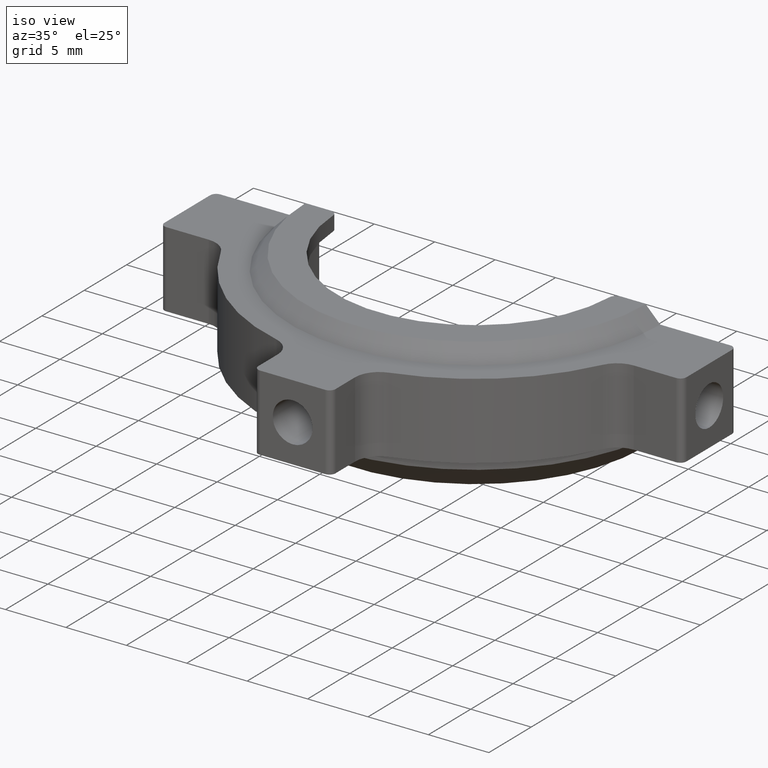
[diagram: clean part render]
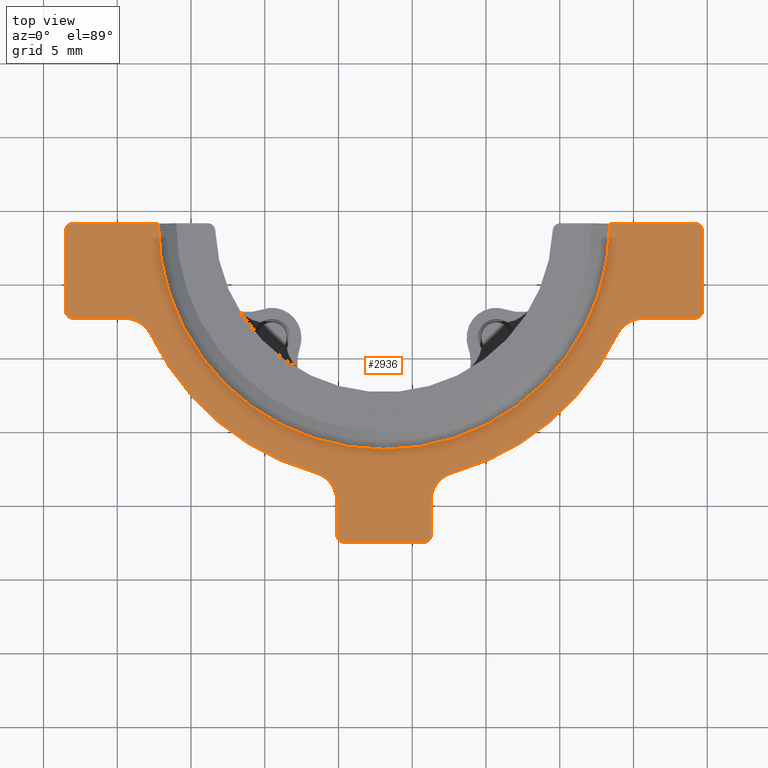
[diagram: tour spotlight — one face highlighted and labeled with its STEP entity id]
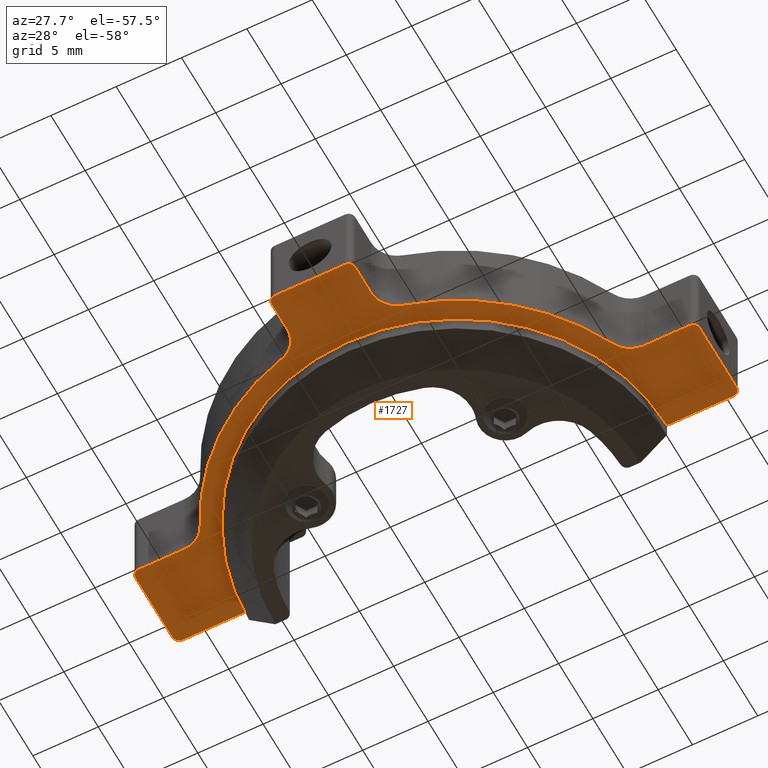
[diagram: tour spotlight — one face highlighted and labeled with its STEP entity id]
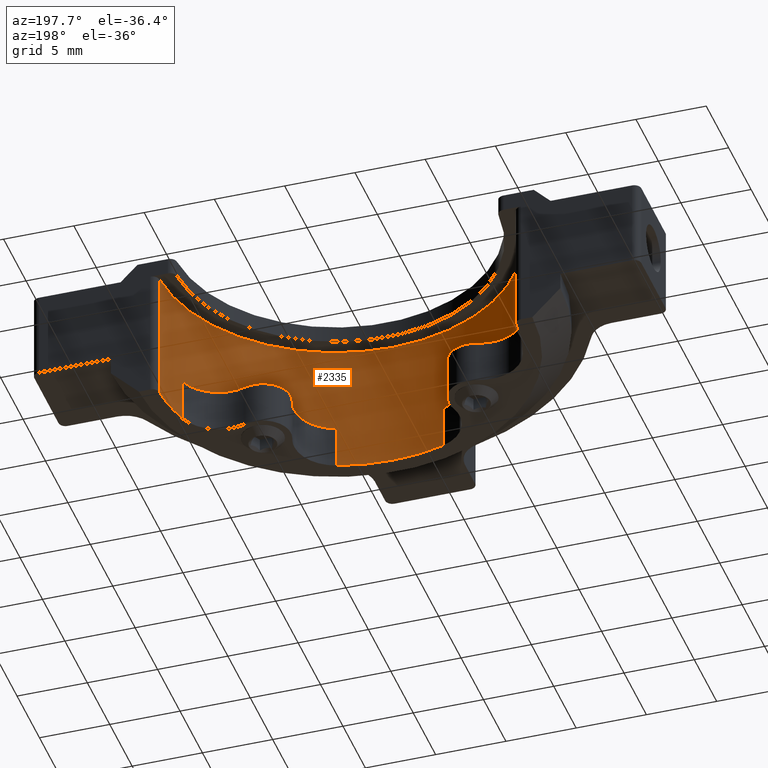
[diagram: tour spotlight — one face highlighted and labeled with its STEP entity id]
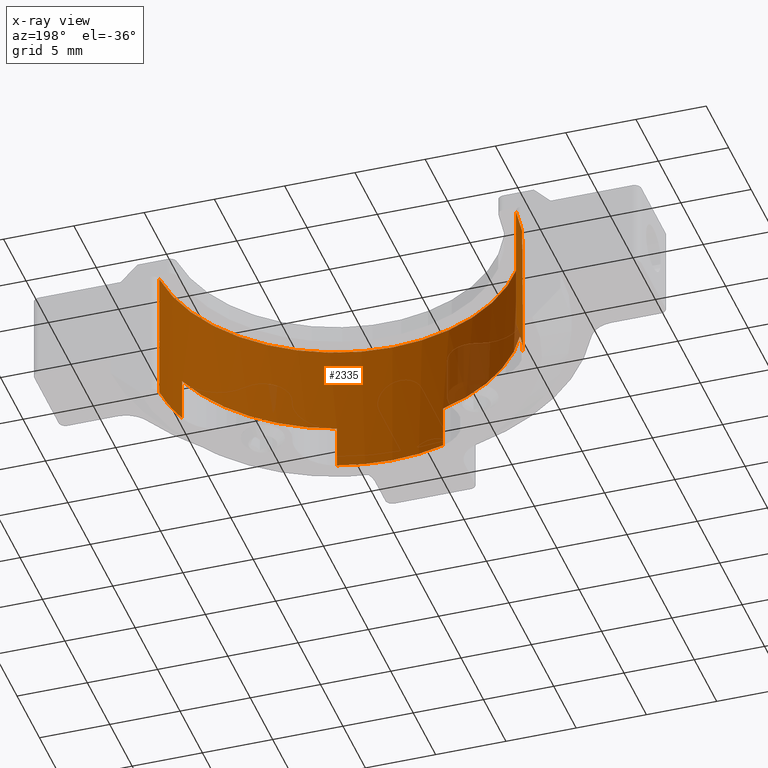
[diagram: x-ray of the same camera — body ghosted, this tour face saturated]
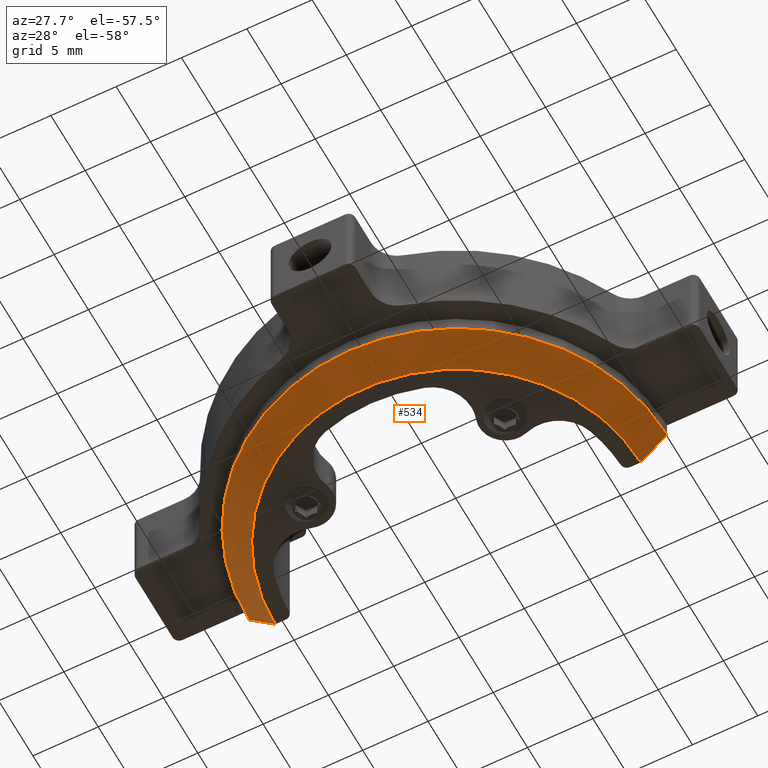
[diagram: tour spotlight — one face highlighted and labeled with its STEP entity id]
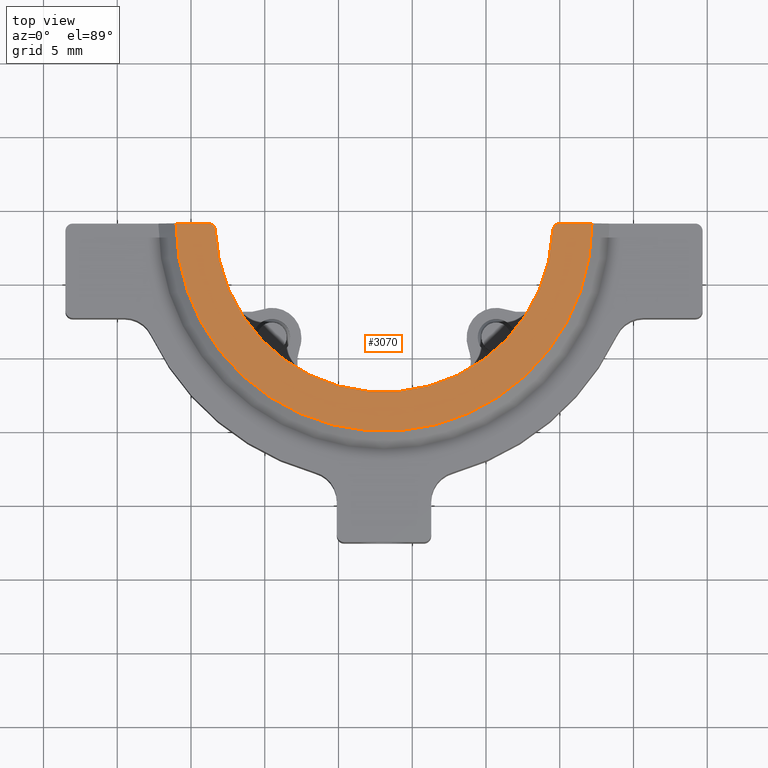
[diagram: tour spotlight — one face highlighted and labeled with its STEP entity id]
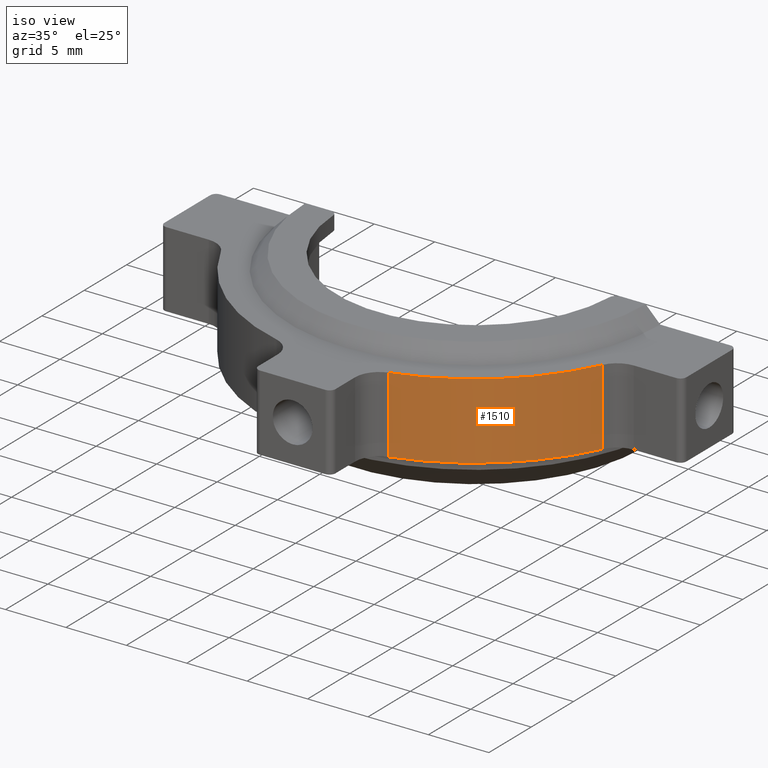
[diagram: tour spotlight — one face highlighted and labeled with its STEP entity id]
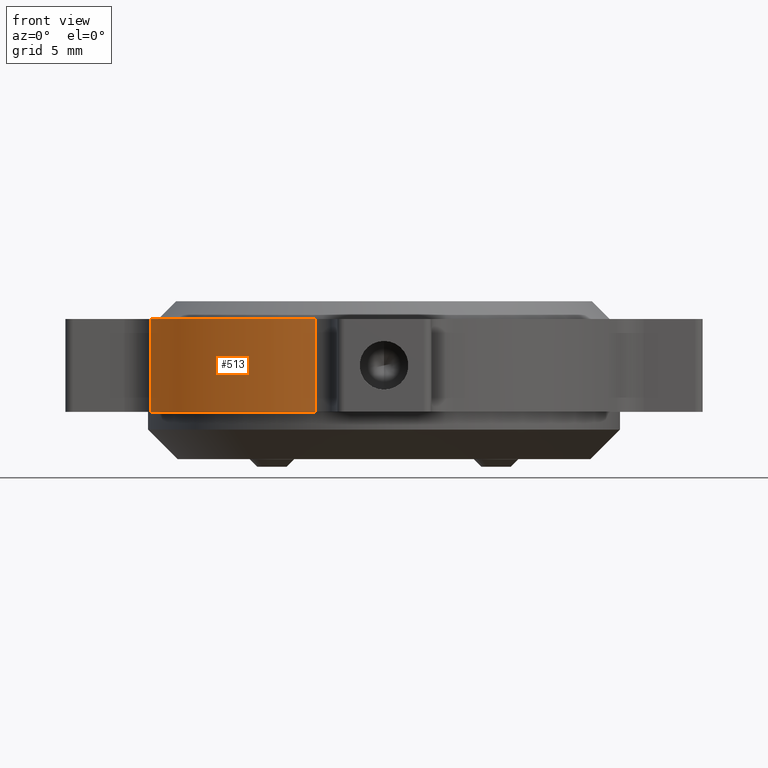
[diagram: tour spotlight — one face highlighted and labeled with its STEP entity id]
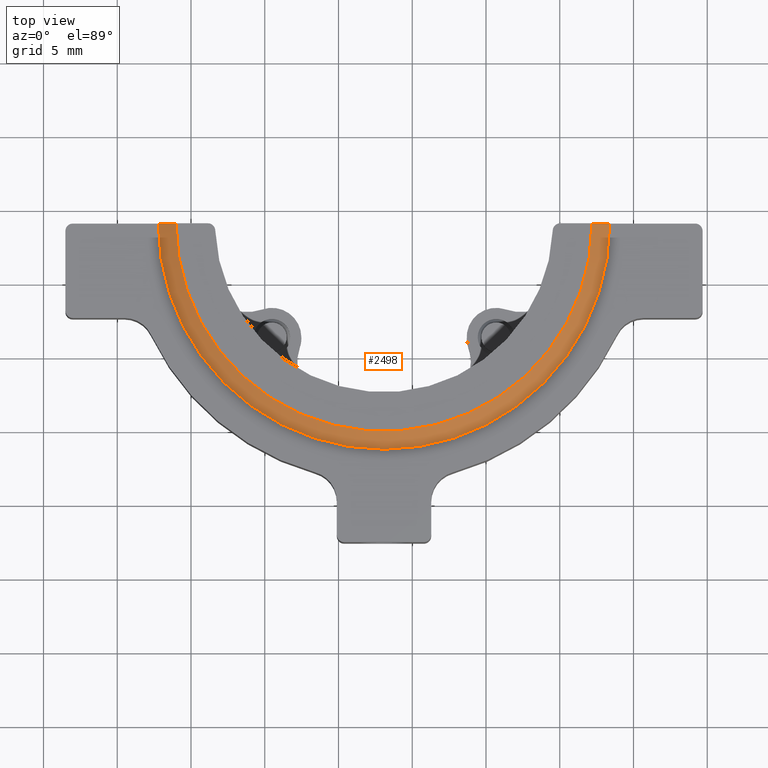
[diagram: tour spotlight — one face highlighted and labeled with its STEP entity id]
A machine part: a face-by-face anatomy tour. The part has 99 B-rep faces; the first image is the clean iso view, then the 8 largest visible faces are spotlighted one at a time (largest first), each with its STEP entity span.

Face 1 — top view, entity #2936. In plain terms, the highlighted planar face has unit normal (0, 0, 1).
Definition (entity closure, byte-faithful):
#3 = VERTEX_POINT ( 'NONE', #410 ) ;
#14 = CARTESIAN_POINT ( 'NONE',  ( 19.18352028902643980, 8.488821372047167912, 33.35000000000000142 ) ) ;
#18 = PLANE ( 'NONE',  #2364 ) ;
#27 = DIRECTION ( 'NONE',  ( 1.973492887659501975E-16, 1.000000000000000000, -0.000000000000000000 ) ) ;
#76 = EDGE_CURVE ( 'NONE', #1061, #1513, #1889, .T. ) ;
#83 = DIRECTION ( 'NONE',  ( -0.000000000000000000, -0.000000000000000000, -1.000000000000000000 ) ) ;
#116 = CIRCLE ( 'NONE', #320, 0.5000000000000004441 ) ;
#121 = LINE ( 'NONE', #1984, #2112 ) ;
#133 = DIRECTION ( 'NONE',  ( 1.000000000000000000, 0.000000000000000000, 0.000000000000000000 ) ) ;
#138 = CARTESIAN_POINT ( 'NONE',  ( -17.21647971097355878, 8.988821372047166136, 33.35000000000000142 ) ) ;
#156 = EDGE_CURVE ( 'NONE', #1513, #719, #3089, .T. ) ;
#169 = CARTESIAN_POINT ( 'NONE',  ( 15.68153154030140328, 0.5888213720471658918, 33.35000000000000142 ) ) ;
#215 = DIRECTION ( 'NONE',  ( 1.000000000000000000, 1.734723475976807094E-15, 0.000000000000000000 ) ) ;
#220 = ORIENTED_EDGE ( 'NONE', *, *, #221, .T. ) ;
#221 = EDGE_CURVE ( 'NONE', #2742, #693, #1026, .T. ) ;
#251 = EDGE_CURVE ( 'NONE', #322, #2742, #2291, .T. ) ;
#271 = DIRECTION ( 'NONE',  ( 1.000000000000000000, 0.000000000000000000, 0.000000000000000000 ) ) ;
#277 = CARTESIAN_POINT ( 'NONE',  ( -15.51647971097355772, -12.61117862795283173, 33.35000000000000142 ) ) ;
#290 = DIRECTION ( 'NONE',  ( -0.000000000000000000, -0.000000000000000000, -1.000000000000000000 ) ) ;
#293 = EDGE_CURVE ( 'NONE', #1767, #2098, #2034, .T. ) ;
#294 = AXIS2_PLACEMENT_3D ( 'NONE', #960, #1460, #2181 ) ;
#320 = AXIS2_PLACEMENT_3D ( 'NONE', #3110, #948, #1899 ) ;
#322 = VERTEX_POINT ( 'NONE', #2688 ) ;
#326 = ORIENTED_EDGE ( 'NONE', *, *, #2732, .T. ) ;
#338 = EDGE_CURVE ( 'NONE', #719, #3034, #3100, .T. ) ;
#350 = VECTOR ( 'NONE', #2694, 1000.000000000000000 ) ;
#365 = ORIENTED_EDGE ( 'NONE', *, *, #2752, .T. ) ;
#408 = CARTESIAN_POINT ( 'NONE',  ( -23.01647971097355594, 3.088821372047166225, 33.35000000000000142 ) ) ;
#410 = CARTESIAN_POINT ( 'NONE',  ( -6.583146377640222369, -7.877482971887285856, 33.35000000000000142 ) ) ;
#458 = DIRECTION ( 'NONE',  ( -0.000000000000000000, -0.000000000000000000, -1.000000000000000000 ) ) ;
#459 = CARTESIAN_POINT ( 'NONE',  ( -23.01647971097355949, 8.988821372047167912, 33.35000000000000142 ) ) ;
#481 = LINE ( 'NONE', #1186, #2292 ) ;
#504 = EDGE_CURVE ( 'NONE', #3, #2306, #3010, .T. ) ;
#535 = DIRECTION ( 'NONE',  ( 1.000000000000000000, 0.000000000000000000, 0.000000000000000000 ) ) ;
#561 = CARTESIAN_POINT ( 'NONE',  ( -23.51647971097355949, 8.488821372047167912, 33.35000000000000142 ) ) ;
#578 = ORIENTED_EDGE ( 'NONE', *, *, #2797, .T. ) ;
#591 = CARTESIAN_POINT ( 'NONE',  ( 19.68352028902643980, 3.088821372047166225, 33.35000000000000142 ) ) ;
#620 = CIRCLE ( 'NONE', #1711, 1.999999999999998224 ) ;
#658 = ORIENTED_EDGE ( 'NONE', *, *, #251, .T. ) ;
#686 = ORIENTED_EDGE ( 'NONE', *, *, #2275, .T. ) ;
#693 = VERTEX_POINT ( 'NONE', #1401 ) ;
#701 = DIRECTION ( 'NONE',  ( -0.000000000000000000, -0.000000000000000000, -1.000000000000000000 ) ) ;
#719 = VERTEX_POINT ( 'NONE', #1683 ) ;
#741 = VECTOR ( 'NONE', #1828, 1000.000000000000000 ) ;
#752 = EDGE_CURVE ( 'NONE', #1407, #3034, #2941, .T. ) ;
#836 = CARTESIAN_POINT ( 'NONE',  ( -23.01647971097355594, 2.588821372047166669, 33.35000000000000142 ) ) ;
#840 = AXIS2_PLACEMENT_3D ( 'NONE', #408, #1117, #2814 ) ;
#841 = VECTOR ( 'NONE', #27, 1000.000000000000000 ) ;
#860 = AXIS2_PLACEMENT_3D ( 'NONE', #169, #1396, #2531 ) ;
#901 = ORIENTED_EDGE ( 'NONE', *, *, #1444, .F. ) ;
#911 = DIRECTION ( 'NONE',  ( 1.000000000000000000, 0.000000000000000000, 0.000000000000000000 ) ) ;
#937 = VERTEX_POINT ( 'NONE', #2520 ) ;
#948 = DIRECTION ( 'NONE',  ( 0.000000000000000000, 0.000000000000000000, 1.000000000000000000 ) ) ;
#960 = CARTESIAN_POINT ( 'NONE',  ( -4.616479710973555584, -12.11117862795282996, 33.35000000000000142 ) ) ;
#961 = CARTESIAN_POINT ( 'NONE',  ( 3.283520289026442551, -9.805060611194083009, 33.35000000000000142 ) ) ;
#973 = DIRECTION ( 'NONE',  ( 0.000000000000000000, 0.000000000000000000, 1.000000000000000000 ) ) ;
#986 = CARTESIAN_POINT ( 'NONE',  ( -19.51449096224851587, 2.588821372047166669, 33.35000000000000142 ) ) ;
#991 = DIRECTION ( 'NONE',  ( 1.000000000000000000, 0.000000000000000000, 0.000000000000000000 ) ) ;
#1011 = CARTESIAN_POINT ( 'NONE',  ( -1.916479710973556516, 8.988821372047169689, 33.35000000000000142 ) ) ;
#1016 = CARTESIAN_POINT ( 'NONE',  ( -23.51647971097355949, 2.588821372047166669, 33.35000000000000142 ) ) ;
#1026 = LINE ( 'NONE', #277, #2637 ) ;
#1037 = CARTESIAN_POINT ( 'NONE',  ( 19.68352028902644690, 2.588821372047166669, 33.35000000000000142 ) ) ;
#1040 = AXIS2_PLACEMENT_3D ( 'NONE', #1011, #290, #991 ) ;
#1061 = VERTEX_POINT ( 'NONE', #459 ) ;
#1070 = CIRCLE ( 'NONE', #2218, 15.30000000000000071 ) ;
#1077 = ORIENTED_EDGE ( 'NONE', *, *, #1223, .F. ) ;
#1117 = DIRECTION ( 'NONE',  ( 0.000000000000000000, 0.000000000000000000, 1.000000000000000000 ) ) ;
#1133 = DIRECTION ( 'NONE',  ( 0.000000000000000000, 1.000000000000000000, 0.000000000000000000 ) ) ;
#1149 = CARTESIAN_POINT ( 'NONE',  ( -4.616479710973555584, -12.61117862795283173, 33.35000000000000142 ) ) ;
#1177 = DIRECTION ( 'NONE',  ( 0.000000000000000000, 0.000000000000000000, 1.000000000000000000 ) ) ;
#1185 = CARTESIAN_POINT ( 'NONE',  ( 0.7835202890264409969, -12.11117862795282996, 33.35000000000000142 ) ) ;
#1186 = CARTESIAN_POINT ( 'NONE',  ( 1.283520289026442329, -8.216119778680431196, 33.35000000000000142 ) ) ;
#1219 = ORIENTED_EDGE ( 'NONE', *, *, #2009, .T. ) ;
#1223 = EDGE_CURVE ( 'NONE', #3, #1424, #3064, .T. ) ;
#1233 = ORIENTED_EDGE ( 'NONE', *, *, #338, .T. ) ;
#1242 = AXIS2_PLACEMENT_3D ( 'NONE', #2671, #83, #1769 ) ;
#1349 = CARTESIAN_POINT ( 'NONE',  ( 19.68352028902643980, -4.611178627952830844, 33.35000000000000142 ) ) ;
#1352 = VERTEX_POINT ( 'NONE', #3097 ) ;
#1372 = ORIENTED_EDGE ( 'NONE', *, *, #2644, .T. ) ;
#1396 = DIRECTION ( 'NONE',  ( -0.000000000000000000, -0.000000000000000000, -1.000000000000000000 ) ) ;
#1398 = EDGE_CURVE ( 'NONE', #322, #2306, #1934, .T. ) ;
#1401 = CARTESIAN_POINT ( 'NONE',  ( 0.7835202890264409969, -12.61117862795283173, 33.35000000000000142 ) ) ;
#1404 = ORIENTED_EDGE ( 'NONE', *, *, #76, .T. ) ;
#1407 = VERTEX_POINT ( 'NONE', #986 ) ;
#1423 = VERTEX_POINT ( 'NONE', #1688 ) ;
#1424 = VERTEX_POINT ( 'NONE', #1919 ) ;
#1435 = CARTESIAN_POINT ( 'NONE',  ( 2.750186955693109780, -7.877482971887285856, 33.35000000000000142 ) ) ;
#1444 = EDGE_CURVE ( 'NONE', #1423, #1931, #481, .T. ) ;
#1460 = DIRECTION ( 'NONE',  ( 0.000000000000000000, 0.000000000000000000, 1.000000000000000000 ) ) ;
#1513 = VERTEX_POINT ( 'NONE', #561 ) ;
#1515 = CARTESIAN_POINT ( 'NONE',  ( -19.51449096224851587, 0.5888213720471658918, 33.35000000000000142 ) ) ;
#1569 = ORIENTED_EDGE ( 'NONE', *, *, #156, .T. ) ;
#1580 = DIRECTION ( 'NONE',  ( -1.000000000000000000, 0.000000000000000000, 0.000000000000000000 ) ) ;
#1656 = CIRCLE ( 'NONE', #2054, 0.5000000000000000000 ) ;
#1662 = CIRCLE ( 'NONE', #2985, 2.000000000000000000 ) ;
#1683 = CARTESIAN_POINT ( 'NONE',  ( -23.51647971097355949, 3.088821372047166225, 33.35000000000000142 ) ) ;
#1688 = CARTESIAN_POINT ( 'NONE',  ( 1.283520289026442773, -9.805060611194083009, 33.35000000000000142 ) ) ;
#1711 = AXIS2_PLACEMENT_3D ( 'NONE', #1515, #458, #3016 ) ;
#1713 = DIRECTION ( 'NONE',  ( 1.000000000000000000, 0.000000000000000000, -0.000000000000000000 ) ) ;
#1754 = VERTEX_POINT ( 'NONE', #138 ) ;
#1767 = VERTEX_POINT ( 'NONE', #3005 ) ;
#1769 = DIRECTION ( 'NONE',  ( 1.000000000000000000, -8.673617379884035472E-16, 0.000000000000000000 ) ) ;
#1828 = DIRECTION ( 'NONE',  ( 2.551063935260010984E-16, -1.000000000000000000, 0.000000000000000000 ) ) ;
#1889 = CIRCLE ( 'NONE', #2957, 0.5000000000000004441 ) ;
#1899 = DIRECTION ( 'NONE',  ( 1.000000000000000000, 0.000000000000000000, 0.000000000000000000 ) ) ;
#1919 = CARTESIAN_POINT ( 'NONE',  ( -17.70956673134852011, 1.450359833585628921, 33.35000000000000142 ) ) ;
#1931 = VERTEX_POINT ( 'NONE', #2558 ) ;
#1934 = LINE ( 'NONE', #2616, #841 ) ;
#1938 = CARTESIAN_POINT ( 'NONE',  ( 19.18352028902643980, 8.988821372047167912, 33.35000000000000142 ) ) ;
#1947 = ORIENTED_EDGE ( 'NONE', *, *, #2184, .F. ) ;
#1972 = VERTEX_POINT ( 'NONE', #1938 ) ;
#1984 = CARTESIAN_POINT ( 'NONE',  ( -17.21647971097355878, 8.988821372047166136, 33.35000000000000142 ) ) ;
#1990 = LINE ( 'NONE', #1037, #2555 ) ;
#1999 = ORIENTED_EDGE ( 'NONE', *, *, #752, .F. ) ;
#2009 = EDGE_CURVE ( 'NONE', #1352, #1972, #3060, .T. ) ;
#2034 = CIRCLE ( 'NONE', #1040, 17.50000000000000000 ) ;
#2041 = CARTESIAN_POINT ( 'NONE',  ( -1.916479710973556516, 8.988821372047175018, 33.35000000000000142 ) ) ;
#2054 = AXIS2_PLACEMENT_3D ( 'NONE', #1185, #2876, #271 ) ;
#2057 = LINE ( 'NONE', #3063, #3082 ) ;
#2085 = DIRECTION ( 'NONE',  ( -0.000000000000000000, -0.000000000000000000, -1.000000000000000000 ) ) ;
#2092 = AXIS2_PLACEMENT_3D ( 'NONE', #14, #973, #2685 ) ;
#2098 = VERTEX_POINT ( 'NONE', #1435 ) ;
#2109 = CARTESIAN_POINT ( 'NONE',  ( 19.18352028902643980, 2.588821372047166669, 33.35000000000000142 ) ) ;
#2112 = VECTOR ( 'NONE', #2940, 1000.000000000000000 ) ;
#2119 = CARTESIAN_POINT ( 'NONE',  ( -15.51647971097355594, -4.611178627952830844, 33.35000000000000142 ) ) ;
#2160 = CARTESIAN_POINT ( 'NONE',  ( -5.116479710973556472, -9.805060611194083009, 33.35000000000000142 ) ) ;
#2181 = DIRECTION ( 'NONE',  ( 1.000000000000000000, 0.000000000000000000, 0.000000000000000000 ) ) ;
#2184 = EDGE_CURVE ( 'NONE', #2471, #2525, #1990, .T. ) ;
#2216 = CIRCLE ( 'NONE', #860, 1.999999999999998224 ) ;
#2218 = AXIS2_PLACEMENT_3D ( 'NONE', #2041, #2085, #133 ) ;
#2275 = EDGE_CURVE ( 'NONE', #693, #1931, #1656, .T. ) ;
#2291 = CIRCLE ( 'NONE', #294, 0.5000000000000004441 ) ;
#2292 = VECTOR ( 'NONE', #2877, 1000.000000000000000 ) ;
#2306 = VERTEX_POINT ( 'NONE', #2160 ) ;
#2349 = AXIS2_PLACEMENT_3D ( 'NONE', #2422, #701, #2484 ) ;
#2353 = ORIENTED_EDGE ( 'NONE', *, *, #2583, .T. ) ;
#2364 = AXIS2_PLACEMENT_3D ( 'NONE', #2119, #1177, #1713 ) ;
#2371 = FACE_OUTER_BOUND ( 'NONE', #2741, .T. ) ;
#2422 = CARTESIAN_POINT ( 'NONE',  ( -1.916479710973556516, 8.988821372047169689, 33.35000000000000142 ) ) ;
#2471 = VERTEX_POINT ( 'NONE', #2109 ) ;
#2484 = DIRECTION ( 'NONE',  ( 1.000000000000000000, 0.000000000000000000, 0.000000000000000000 ) ) ;
#2520 = CARTESIAN_POINT ( 'NONE',  ( 13.38352028902644442, 8.988821372047175018, 33.35000000000000142 ) ) ;
#2525 = VERTEX_POINT ( 'NONE', #2858 ) ;
#2531 = DIRECTION ( 'NONE',  ( 1.000000000000000000, 0.000000000000000000, 0.000000000000000000 ) ) ;
#2555 = VECTOR ( 'NONE', #1580, 1000.000000000000000 ) ;
#2557 = DIRECTION ( 'NONE',  ( 0.000000000000000000, 0.000000000000000000, 1.000000000000000000 ) ) ;
#2558 = CARTESIAN_POINT ( 'NONE',  ( 1.283520289026443217, -12.11117862795282996, 33.35000000000000142 ) ) ;
#2583 = EDGE_CURVE ( 'NONE', #2471, #2965, #116, .T. ) ;
#2611 = VECTOR ( 'NONE', #1133, 1000.000000000000000 ) ;
#2616 = CARTESIAN_POINT ( 'NONE',  ( -5.116479710973555584, -8.216119778680431196, 33.35000000000000142 ) ) ;
#2619 = CARTESIAN_POINT ( 'NONE',  ( -23.01647971097355949, 8.488821372047167912, 33.35000000000000142 ) ) ;
#2637 = VECTOR ( 'NONE', #535, 1000.000000000000000 ) ;
#2644 = EDGE_CURVE ( 'NONE', #1754, #1061, #121, .T. ) ;
#2662 = EDGE_CURVE ( 'NONE', #1407, #1424, #620, .T. ) ;
#2671 = CARTESIAN_POINT ( 'NONE',  ( -7.116479710973555584, -9.805060611194083009, 33.35000000000000142 ) ) ;
#2685 = DIRECTION ( 'NONE',  ( 1.000000000000000000, 0.000000000000000000, 0.000000000000000000 ) ) ;
#2688 = CARTESIAN_POINT ( 'NONE',  ( -5.116479710973556472, -12.11117862795282996, 33.35000000000000142 ) ) ;
#2694 = DIRECTION ( 'NONE',  ( -1.000000000000000000, -0.000000000000000000, -0.000000000000000000 ) ) ;
#2732 = EDGE_CURVE ( 'NONE', #1767, #2525, #2216, .T. ) ;
#2741 = EDGE_LOOP ( 'NONE', ( #1947, #2353, #365, #1219, #578, #2910, #1372, #1404, #1569, #1233, #1999, #2939, #1077, #2926, #2885, #658, #220, #686, #901, #2838, #3087, #326 ) ) ;
#2742 = VERTEX_POINT ( 'NONE', #1149 ) ;
#2752 = EDGE_CURVE ( 'NONE', #2965, #1352, #3047, .T. ) ;
#2788 = EDGE_CURVE ( 'NONE', #937, #1754, #1070, .T. ) ;
#2797 = EDGE_CURVE ( 'NONE', #1972, #937, #2057, .T. ) ;
#2810 = EDGE_CURVE ( 'NONE', #1423, #2098, #1662, .T. ) ;
#2814 = DIRECTION ( 'NONE',  ( 1.000000000000000000, 0.000000000000000000, 0.000000000000000000 ) ) ;
#2816 = CARTESIAN_POINT ( 'NONE',  ( -23.51647971097355949, 8.988821372047167912, 33.35000000000000142 ) ) ;
#2838 = ORIENTED_EDGE ( 'NONE', *, *, #2810, .T. ) ;
#2858 = CARTESIAN_POINT ( 'NONE',  ( 15.68153154030140328, 2.588821372047166669, 33.35000000000000142 ) ) ;
#2866 = DIRECTION ( 'NONE',  ( -0.000000000000000000, -0.000000000000000000, -1.000000000000000000 ) ) ;
#2876 = DIRECTION ( 'NONE',  ( 0.000000000000000000, 0.000000000000000000, 1.000000000000000000 ) ) ;
#2877 = DIRECTION ( 'NONE',  ( 1.973492887659501975E-16, -1.000000000000000000, 0.000000000000000000 ) ) ;
#2885 = ORIENTED_EDGE ( 'NONE', *, *, #1398, .F. ) ;
#2910 = ORIENTED_EDGE ( 'NONE', *, *, #2788, .T. ) ;
#2926 = ORIENTED_EDGE ( 'NONE', *, *, #504, .T. ) ;
#2936 = ADVANCED_FACE ( 'NONE', ( #2371 ), #18, .T. ) ;
#2939 = ORIENTED_EDGE ( 'NONE', *, *, #2662, .T. ) ;
#2940 = DIRECTION ( 'NONE',  ( -1.000000000000000000, 2.753529326947311447E-16, 0.000000000000000000 ) ) ;
#2941 = LINE ( 'NONE', #1016, #350 ) ;
#2957 = AXIS2_PLACEMENT_3D ( 'NONE', #2619, #2557, #911 ) ;
#2965 = VERTEX_POINT ( 'NONE', #591 ) ;
#2985 = AXIS2_PLACEMENT_3D ( 'NONE', #961, #2866, #215 ) ;
#3005 = CARTESIAN_POINT ( 'NONE',  ( 13.87660730940140574, 1.450359833585628921, 33.35000000000000142 ) ) ;
#3010 = CIRCLE ( 'NONE', #1242, 2.000000000000000000 ) ;
#3016 = DIRECTION ( 'NONE',  ( 1.000000000000000000, -6.234162491791656018E-15, 0.000000000000000000 ) ) ;
#3032 = DIRECTION ( 'NONE',  ( -1.000000000000000000, -2.753529326947314406E-16, 0.000000000000000000 ) ) ;
#3034 = VERTEX_POINT ( 'NONE', #836 ) ;
#3047 = LINE ( 'NONE', #1349, #2611 ) ;
#3060 = CIRCLE ( 'NONE', #2092, 0.5000000000000004441 ) ;
#3063 = CARTESIAN_POINT ( 'NONE',  ( 19.68352028902643980, 8.988821372047167912, 33.35000000000000142 ) ) ;
#3064 = CIRCLE ( 'NONE', #2349, 17.50000000000000000 ) ;
#3082 = VECTOR ( 'NONE', #3032, 1000.000000000000000 ) ;
#3087 = ORIENTED_EDGE ( 'NONE', *, *, #293, .F. ) ;
#3089 = LINE ( 'NONE', #2816, #741 ) ;
#3097 = CARTESIAN_POINT ( 'NONE',  ( 19.68352028902643980, 8.488821372047167912, 33.35000000000000142 ) ) ;
#3100 = CIRCLE ( 'NONE', #840, 0.5000000000000004441 ) ;
#3110 = CARTESIAN_POINT ( 'NONE',  ( 19.18352028902643980, 3.088821372047166225, 33.35000000000000142 ) ) ;

Face 2 — auxiliary view, entity #1727. In plain terms, the highlighted planar face has unit normal (0, 0, -1).
Definition (entity closure, byte-faithful):
#2 = AXIS2_PLACEMENT_3D ( 'NONE', #2290, #862, #1812 ) ;
#34 = CARTESIAN_POINT ( 'NONE',  ( -1.916479710973556516, 8.988821372047169689, 27.05000000000000426 ) ) ;
#45 = CIRCLE ( 'NONE', #356, 2.000000000000000000 ) ;
#61 = DIRECTION ( 'NONE',  ( -2.551063935260010984E-16, 1.000000000000000000, -0.000000000000000000 ) ) ;
#75 = DIRECTION ( 'NONE',  ( -0.000000000000000000, -0.000000000000000000, 1.000000000000000000 ) ) ;
#112 = DIRECTION ( 'NONE',  ( -1.000000000000000000, 0.000000000000000000, 0.000000000000000000 ) ) ;
#118 = AXIS2_PLACEMENT_3D ( 'NONE', #34, #243, #1676 ) ;
#143 = CARTESIAN_POINT ( 'NONE',  ( 1.283520289026442773, -9.805060611194083009, 27.05000000000000426 ) ) ;
#146 = CIRCLE ( 'NONE', #1888, 1.999999999999998224 ) ;
#148 = DIRECTION ( 'NONE',  ( 0.000000000000000000, 0.000000000000000000, -1.000000000000000000 ) ) ;
#152 = DIRECTION ( 'NONE',  ( 0.000000000000000000, 0.000000000000000000, -1.000000000000000000 ) ) ;
#159 = CIRCLE ( 'NONE', #370, 0.5000000000000004441 ) ;
#178 = CARTESIAN_POINT ( 'NONE',  ( -17.91647971097355807, 8.988821372047173242, 27.05000000000000426 ) ) ;
#184 = ORIENTED_EDGE ( 'NONE', *, *, #3043, .T. ) ;
#185 = CARTESIAN_POINT ( 'NONE',  ( 14.08352028902644371, 8.988821372047171465, 27.05000000000000426 ) ) ;
#192 = VERTEX_POINT ( 'NONE', #1979 ) ;
#217 = CARTESIAN_POINT ( 'NONE',  ( 0.7835202890264409969, -12.11117862795282996, 27.05000000000000426 ) ) ;
#243 = DIRECTION ( 'NONE',  ( -0.000000000000000000, -0.000000000000000000, 1.000000000000000000 ) ) ;
#253 = CARTESIAN_POINT ( 'NONE',  ( -1.916479710973556516, 8.988821372047169689, 27.05000000000000426 ) ) ;
#270 = CARTESIAN_POINT ( 'NONE',  ( -23.51647971097355949, 8.988821372047167912, 27.05000000000000426 ) ) ;
#292 = DIRECTION ( 'NONE',  ( -1.000000000000000000, 0.000000000000000000, 0.000000000000000000 ) ) ;
#314 = CARTESIAN_POINT ( 'NONE',  ( -5.116479710973555584, -8.216119778680431196, 27.05000000000000426 ) ) ;
#329 = CARTESIAN_POINT ( 'NONE',  ( 19.68352028902643980, 3.088821372047164449, 27.05000000000000426 ) ) ;
#335 = VERTEX_POINT ( 'NONE', #178 ) ;
#356 = AXIS2_PLACEMENT_3D ( 'NONE', #2777, #75, #855 ) ;
#369 = EDGE_LOOP ( 'NONE', ( #1428, #414, #1003, #2351, #666, #789, #1873, #2875, #1068, #2568, #1446, #1532, #1231, #2549, #2902, #2383, #184, #767, #2505, #1589, #486, #1560 ) ) ;
#370 = AXIS2_PLACEMENT_3D ( 'NONE', #389, #1303, #112 ) ;
#378 = CARTESIAN_POINT ( 'NONE',  ( 15.68153154030140328, 2.588821372047166669, 27.05000000000000426 ) ) ;
#389 = CARTESIAN_POINT ( 'NONE',  ( 19.18352028902643980, 3.088821372047166225, 27.05000000000000426 ) ) ;
#390 = DIRECTION ( 'NONE',  ( -1.000000000000000000, 0.000000000000000000, -0.000000000000000000 ) ) ;
#406 = AXIS2_PLACEMENT_3D ( 'NONE', #2792, #1779, #390 ) ;
#411 = CARTESIAN_POINT ( 'NONE',  ( -23.51647971097355949, 2.588821372047166669, 27.05000000000000426 ) ) ;
#414 = ORIENTED_EDGE ( 'NONE', *, *, #2417, .T. ) ;
#430 = VERTEX_POINT ( 'NONE', #2080 ) ;
#433 = DIRECTION ( 'NONE',  ( 1.000000000000000000, 9.293161478447174101E-16, 0.000000000000000000 ) ) ;
#438 = EDGE_CURVE ( 'NONE', #2778, #2932, #2539, .T. ) ;
#452 = VECTOR ( 'NONE', #1593, 1000.000000000000000 ) ;
#486 = ORIENTED_EDGE ( 'NONE', *, *, #2562, .T. ) ;
#502 = DIRECTION ( 'NONE',  ( -1.000000000000000000, -1.788933584601083894E-15, 0.000000000000000000 ) ) ;
#540 = CARTESIAN_POINT ( 'NONE',  ( 19.68352028902643980, 8.988821372047167912, 27.05000000000000426 ) ) ;
#552 = EDGE_CURVE ( 'NONE', #2486, #1262, #806, .T. ) ;
#553 = AXIS2_PLACEMENT_3D ( 'NONE', #1173, #2631, #2115 ) ;
#577 = DIRECTION ( 'NONE',  ( -0.000000000000000000, -1.000000000000000000, -0.000000000000000000 ) ) ;
#633 = DIRECTION ( 'NONE',  ( -1.000000000000000000, 0.000000000000000000, 0.000000000000000000 ) ) ;
#666 = ORIENTED_EDGE ( 'NONE', *, *, #1188, .T. ) ;
#677 = DIRECTION ( 'NONE',  ( -1.000000000000000000, 0.000000000000000000, 0.000000000000000000 ) ) ;
#684 = CARTESIAN_POINT ( 'NONE',  ( -23.01647971097355594, 2.588821372047166669, 27.05000000000000426 ) ) ;
#703 = EDGE_CURVE ( 'NONE', #2133, #947, #2859, .T. ) ;
#731 = DIRECTION ( 'NONE',  ( -0.000000000000000000, -0.000000000000000000, 1.000000000000000000 ) ) ;
#747 = VERTEX_POINT ( 'NONE', #2137 ) ;
#748 = VECTOR ( 'NONE', #1261, 1000.000000000000000 ) ;
#750 = LINE ( 'NONE', #540, #1211 ) ;
#754 = LINE ( 'NONE', #270, #2014 ) ;
#767 = ORIENTED_EDGE ( 'NONE', *, *, #1375, .T. ) ;
#789 = ORIENTED_EDGE ( 'NONE', *, *, #927, .T. ) ;
#796 = VERTEX_POINT ( 'NONE', #2173 ) ;
#800 = AXIS2_PLACEMENT_3D ( 'NONE', #2882, #2154, #2675 ) ;
#806 = LINE ( 'NONE', #1740, #2905 ) ;
#855 = DIRECTION ( 'NONE',  ( -1.000000000000000000, -8.673617379884035472E-16, 0.000000000000000000 ) ) ;
#857 = AXIS2_PLACEMENT_3D ( 'NONE', #1974, #2176, #1470 ) ;
#862 = DIRECTION ( 'NONE',  ( -0.000000000000000000, -0.000000000000000000, 1.000000000000000000 ) ) ;
#926 = DIRECTION ( 'NONE',  ( -1.000000000000000000, 0.000000000000000000, 0.000000000000000000 ) ) ;
#927 = EDGE_CURVE ( 'NONE', #1852, #2133, #45, .T. ) ;
#947 = VERTEX_POINT ( 'NONE', #2002 ) ;
#950 = VERTEX_POINT ( 'NONE', #2973 ) ;
#952 = CARTESIAN_POINT ( 'NONE',  ( -23.01647971097355949, 8.988821372047167912, 27.05000000000000426 ) ) ;
#998 = AXIS2_PLACEMENT_3D ( 'NONE', #3104, #1910, #292 ) ;
#1003 = ORIENTED_EDGE ( 'NONE', *, *, #2511, .T. ) ;
#1068 = ORIENTED_EDGE ( 'NONE', *, *, #1746, .T. ) ;
#1075 = EDGE_CURVE ( 'NONE', #947, #1887, #2702, .T. ) ;
#1083 = DIRECTION ( 'NONE',  ( 0.000000000000000000, 0.000000000000000000, -1.000000000000000000 ) ) ;
#1140 = PLANE ( 'NONE',  #406 ) ;
#1156 = CIRCLE ( 'NONE', #857, 2.000000000000000000 ) ;
#1158 = EDGE_CURVE ( 'NONE', #2719, #1901, #1493, .T. ) ;
#1173 = CARTESIAN_POINT ( 'NONE',  ( -23.01647971097355949, 8.488821372047167912, 27.05000000000000426 ) ) ;
#1179 = EDGE_CURVE ( 'NONE', #430, #2869, #146, .T. ) ;
#1182 = DIRECTION ( 'NONE',  ( 1.973492887659502222E-16, -1.000000000000000000, 0.000000000000000000 ) ) ;
#1187 = AXIS2_PLACEMENT_3D ( 'NONE', #1553, #148, #2528 ) ;
#1188 = EDGE_CURVE ( 'NONE', #2707, #1852, #2756, .T. ) ;
#1211 = VECTOR ( 'NONE', #2612, 1000.000000000000000 ) ;
#1231 = ORIENTED_EDGE ( 'NONE', *, *, #3098, .T. ) ;
#1261 = DIRECTION ( 'NONE',  ( 1.973492887659502222E-16, 1.000000000000000000, 0.000000000000000000 ) ) ;
#1262 = VERTEX_POINT ( 'NONE', #329 ) ;
#1269 = EDGE_CURVE ( 'NONE', #2932, #2424, #2705, .T. ) ;
#1303 = DIRECTION ( 'NONE',  ( 0.000000000000000000, 0.000000000000000000, -1.000000000000000000 ) ) ;
#1315 = VERTEX_POINT ( 'NONE', #378 ) ;
#1375 = EDGE_CURVE ( 'NONE', #192, #2331, #1882, .T. ) ;
#1428 = ORIENTED_EDGE ( 'NONE', *, *, #552, .T. ) ;
#1446 = ORIENTED_EDGE ( 'NONE', *, *, #1269, .T. ) ;
#1470 = DIRECTION ( 'NONE',  ( -1.000000000000000000, -6.234162491791650496E-15, 0.000000000000000000 ) ) ;
#1477 = CARTESIAN_POINT ( 'NONE',  ( -19.51449096224851587, 0.5888213720471658918, 27.05000000000000426 ) ) ;
#1493 = CIRCLE ( 'NONE', #800, 0.5000000000000004441 ) ;
#1514 = AXIS2_PLACEMENT_3D ( 'NONE', #253, #1720, #2395 ) ;
#1532 = ORIENTED_EDGE ( 'NONE', *, *, #2251, .T. ) ;
#1549 = CARTESIAN_POINT ( 'NONE',  ( -15.51647971097355594, -12.61117862795283173, 27.05000000000000426 ) ) ;
#1553 = CARTESIAN_POINT ( 'NONE',  ( -4.616479710973555584, -12.11117862795282996, 27.05000000000000426 ) ) ;
#1560 = ORIENTED_EDGE ( 'NONE', *, *, #2165, .T. ) ;
#1584 = LINE ( 'NONE', #411, #2592 ) ;
#1589 = ORIENTED_EDGE ( 'NONE', *, *, #2888, .T. ) ;
#1593 = DIRECTION ( 'NONE',  ( -1.000000000000000000, -0.000000000000000000, -0.000000000000000000 ) ) ;
#1625 = EDGE_CURVE ( 'NONE', #2331, #335, #2021, .T. ) ;
#1676 = DIRECTION ( 'NONE',  ( -1.000000000000000000, 0.000000000000000000, 0.000000000000000000 ) ) ;
#1720 = DIRECTION ( 'NONE',  ( 0.000000000000000000, 0.000000000000000000, -1.000000000000000000 ) ) ;
#1727 = ADVANCED_FACE ( 'NONE', ( #2288 ), #1140, .T. ) ;
#1740 = CARTESIAN_POINT ( 'NONE',  ( 19.68352028902643980, -4.611178627952827291, 27.05000000000000426 ) ) ;
#1746 = EDGE_CURVE ( 'NONE', #1887, #2778, #2507, .T. ) ;
#1779 = DIRECTION ( 'NONE',  ( 0.000000000000000000, 0.000000000000000000, -1.000000000000000000 ) ) ;
#1812 = DIRECTION ( 'NONE',  ( -1.000000000000000000, 1.734723475976807883E-15, 0.000000000000000000 ) ) ;
#1852 = VERTEX_POINT ( 'NONE', #3015 ) ;
#1873 = ORIENTED_EDGE ( 'NONE', *, *, #703, .T. ) ;
#1882 = CIRCLE ( 'NONE', #553, 0.5000000000000004441 ) ;
#1887 = VERTEX_POINT ( 'NONE', #3077 ) ;
#1888 = AXIS2_PLACEMENT_3D ( 'NONE', #1477, #731, #502 ) ;
#1901 = VERTEX_POINT ( 'NONE', #2102 ) ;
#1905 = CIRCLE ( 'NONE', #118, 16.00000000000000000 ) ;
#1910 = DIRECTION ( 'NONE',  ( 0.000000000000000000, 0.000000000000000000, -1.000000000000000000 ) ) ;
#1911 = EDGE_CURVE ( 'NONE', #2869, #2719, #1584, .T. ) ;
#1974 = CARTESIAN_POINT ( 'NONE',  ( 15.68153154030140328, 0.5888213720471658918, 27.05000000000000426 ) ) ;
#1979 = CARTESIAN_POINT ( 'NONE',  ( -23.51647971097355949, 8.488821372047167912, 27.05000000000000426 ) ) ;
#2002 = CARTESIAN_POINT ( 'NONE',  ( 1.283520289026443217, -12.11117862795282996, 27.05000000000000426 ) ) ;
#2014 = VECTOR ( 'NONE', #61, 1000.000000000000000 ) ;
#2021 = LINE ( 'NONE', #2318, #2796 ) ;
#2056 = DIRECTION ( 'NONE',  ( -1.000000000000000000, 0.000000000000000000, 0.000000000000000000 ) ) ;
#2080 = CARTESIAN_POINT ( 'NONE',  ( -17.70956673134852011, 1.450359833585628921, 27.05000000000000426 ) ) ;
#2093 = LINE ( 'NONE', #2824, #3079 ) ;
#2102 = CARTESIAN_POINT ( 'NONE',  ( -23.51647971097355949, 3.088821372047166225, 27.05000000000000426 ) ) ;
#2108 = AXIS2_PLACEMENT_3D ( 'NONE', #3009, #1083, #633 ) ;
#2115 = DIRECTION ( 'NONE',  ( -1.000000000000000000, 0.000000000000000000, 0.000000000000000000 ) ) ;
#2133 = VERTEX_POINT ( 'NONE', #143 ) ;
#2137 = CARTESIAN_POINT ( 'NONE',  ( 19.18352028902643980, 8.988821372047167912, 27.05000000000000426 ) ) ;
#2154 = DIRECTION ( 'NONE',  ( 0.000000000000000000, 0.000000000000000000, -1.000000000000000000 ) ) ;
#2165 = EDGE_CURVE ( 'NONE', #747, #2486, #2410, .T. ) ;
#2173 = CARTESIAN_POINT ( 'NONE',  ( 19.18352028902643980, 2.588821372047166669, 27.05000000000000426 ) ) ;
#2176 = DIRECTION ( 'NONE',  ( -0.000000000000000000, -0.000000000000000000, 1.000000000000000000 ) ) ;
#2248 = VECTOR ( 'NONE', #1182, 1000.000000000000000 ) ;
#2251 = EDGE_CURVE ( 'NONE', #2424, #950, #2768, .T. ) ;
#2288 = FACE_OUTER_BOUND ( 'NONE', #369, .T. ) ;
#2290 = CARTESIAN_POINT ( 'NONE',  ( -7.116479710973555584, -9.805060611194083009, 27.05000000000000426 ) ) ;
#2305 = EDGE_CURVE ( 'NONE', #1315, #2707, #1156, .T. ) ;
#2318 = CARTESIAN_POINT ( 'NONE',  ( -23.51647971097355949, 8.988821372047167912, 27.05000000000000426 ) ) ;
#2331 = VERTEX_POINT ( 'NONE', #952 ) ;
#2344 = AXIS2_PLACEMENT_3D ( 'NONE', #217, #152, #926 ) ;
#2351 = ORIENTED_EDGE ( 'NONE', *, *, #2305, .T. ) ;
#2383 = ORIENTED_EDGE ( 'NONE', *, *, #1158, .T. ) ;
#2395 = DIRECTION ( 'NONE',  ( -1.000000000000000000, 0.000000000000000000, 0.000000000000000000 ) ) ;
#2410 = CIRCLE ( 'NONE', #2108, 0.5000000000000004441 ) ;
#2417 = EDGE_CURVE ( 'NONE', #1262, #796, #159, .T. ) ;
#2424 = VERTEX_POINT ( 'NONE', #2461 ) ;
#2461 = CARTESIAN_POINT ( 'NONE',  ( -5.116479710973556472, -9.805060611194083009, 27.05000000000000426 ) ) ;
#2486 = VERTEX_POINT ( 'NONE', #2565 ) ;
#2505 = ORIENTED_EDGE ( 'NONE', *, *, #1625, .T. ) ;
#2507 = LINE ( 'NONE', #1549, #452 ) ;
#2508 = VERTEX_POINT ( 'NONE', #185 ) ;
#2511 = EDGE_CURVE ( 'NONE', #796, #1315, #2093, .T. ) ;
#2528 = DIRECTION ( 'NONE',  ( -1.000000000000000000, 0.000000000000000000, 0.000000000000000000 ) ) ;
#2539 = CIRCLE ( 'NONE', #1187, 0.5000000000000004441 ) ;
#2549 = ORIENTED_EDGE ( 'NONE', *, *, #1179, .T. ) ;
#2562 = EDGE_CURVE ( 'NONE', #2508, #747, #750, .T. ) ;
#2565 = CARTESIAN_POINT ( 'NONE',  ( 19.68352028902643980, 8.488821372047164360, 27.05000000000000426 ) ) ;
#2568 = ORIENTED_EDGE ( 'NONE', *, *, #438, .T. ) ;
#2574 = CARTESIAN_POINT ( 'NONE',  ( 13.87660730940140574, 1.450359833585628921, 27.05000000000000426 ) ) ;
#2589 = CARTESIAN_POINT ( 'NONE',  ( -4.616479710973555584, -12.61117862795283173, 27.05000000000000426 ) ) ;
#2592 = VECTOR ( 'NONE', #2056, 1000.000000000000000 ) ;
#2612 = DIRECTION ( 'NONE',  ( 1.000000000000000000, -3.097720492815728645E-16, -0.000000000000000000 ) ) ;
#2631 = DIRECTION ( 'NONE',  ( 0.000000000000000000, 0.000000000000000000, -1.000000000000000000 ) ) ;
#2661 = CARTESIAN_POINT ( 'NONE',  ( 1.283520289026442329, -8.216119778680431196, 27.05000000000000426 ) ) ;
#2675 = DIRECTION ( 'NONE',  ( -1.000000000000000000, 0.000000000000000000, 0.000000000000000000 ) ) ;
#2702 = CIRCLE ( 'NONE', #2344, 0.5000000000000000000 ) ;
#2705 = LINE ( 'NONE', #314, #748 ) ;
#2707 = VERTEX_POINT ( 'NONE', #2574 ) ;
#2719 = VERTEX_POINT ( 'NONE', #684 ) ;
#2756 = CIRCLE ( 'NONE', #998, 17.50000000000000000 ) ;
#2768 = CIRCLE ( 'NONE', #2, 1.999999999999999112 ) ;
#2777 = CARTESIAN_POINT ( 'NONE',  ( 3.283520289026442551, -9.805060611194083009, 27.05000000000000426 ) ) ;
#2778 = VERTEX_POINT ( 'NONE', #2589 ) ;
#2792 = CARTESIAN_POINT ( 'NONE',  ( 11.68352028902644157, -4.611178627952830844, 27.05000000000000426 ) ) ;
#2796 = VECTOR ( 'NONE', #433, 1000.000000000000000 ) ;
#2824 = CARTESIAN_POINT ( 'NONE',  ( 19.68352028902644690, 2.588821372047166669, 27.05000000000000426 ) ) ;
#2851 = CARTESIAN_POINT ( 'NONE',  ( -19.51449096224851587, 2.588821372047166669, 27.05000000000000426 ) ) ;
#2859 = LINE ( 'NONE', #2661, #2248 ) ;
#2869 = VERTEX_POINT ( 'NONE', #2851 ) ;
#2874 = CIRCLE ( 'NONE', #1514, 17.50000000000000000 ) ;
#2875 = ORIENTED_EDGE ( 'NONE', *, *, #1075, .T. ) ;
#2882 = CARTESIAN_POINT ( 'NONE',  ( -23.01647971097355594, 3.088821372047166225, 27.05000000000000426 ) ) ;
#2888 = EDGE_CURVE ( 'NONE', #335, #2508, #1905, .T. ) ;
#2902 = ORIENTED_EDGE ( 'NONE', *, *, #1911, .T. ) ;
#2905 = VECTOR ( 'NONE', #577, 1000.000000000000000 ) ;
#2918 = CARTESIAN_POINT ( 'NONE',  ( -5.116479710973556472, -12.11117862795282996, 27.05000000000000426 ) ) ;
#2932 = VERTEX_POINT ( 'NONE', #2918 ) ;
#2973 = CARTESIAN_POINT ( 'NONE',  ( -6.583146377640222369, -7.877482971887285856, 27.05000000000000426 ) ) ;
#3009 = CARTESIAN_POINT ( 'NONE',  ( 19.18352028902643980, 8.488821372047167912, 27.05000000000000426 ) ) ;
#3015 = CARTESIAN_POINT ( 'NONE',  ( 2.750186955693109780, -7.877482971887285856, 27.05000000000000426 ) ) ;
#3043 = EDGE_CURVE ( 'NONE', #1901, #192, #754, .T. ) ;
#3077 = CARTESIAN_POINT ( 'NONE',  ( 0.7835202890264393316, -12.61117862795283173, 27.05000000000000426 ) ) ;
#3079 = VECTOR ( 'NONE', #677, 1000.000000000000000 ) ;
#3098 = EDGE_CURVE ( 'NONE', #950, #430, #2874, .T. ) ;
#3104 = CARTESIAN_POINT ( 'NONE',  ( -1.916479710973556516, 8.988821372047169689, 27.05000000000000426 ) ) ;

Face 3 — auxiliary view, entity #2335. An x-ray twin of the same camera follows (body ghosted, this face saturated) — the face is partly hidden behind the body. In plain terms, the highlighted cylindrical surface (partial cylindrical patch) has radius 12.7 mm, axis along (0, 0, -1).
Definition (entity closure, byte-faithful):
#16 = EDGE_CURVE ( 'NONE', #1811, #1698, #826, .T. ) ;
#43 = CIRCLE ( 'NONE', #245, 12.69999999999999929 ) ;
#54 = VERTEX_POINT ( 'NONE', #394 ) ;
#66 = VERTEX_POINT ( 'NONE', #456 ) ;
#195 = DIRECTION ( 'NONE',  ( 0.000000000000000000, 0.000000000000000000, -1.000000000000000000 ) ) ;
#199 = DIRECTION ( 'NONE',  ( 0.000000000000000000, -0.000000000000000000, -1.000000000000000000 ) ) ;
#245 = AXIS2_PLACEMENT_3D ( 'NONE', #2785, #199, #1601 ) ;
#262 = CARTESIAN_POINT ( 'NONE',  ( -1.916479710973556516, 8.988821372047167912, 33.35000000000000142 ) ) ;
#276 = EDGE_CURVE ( 'NONE', #66, #1734, #643, .T. ) ;
#300 = AXIS2_PLACEMENT_3D ( 'NONE', #918, #1617, #1378 ) ;
#311 = LINE ( 'NONE', #3042, #692 ) ;
#318 = AXIS2_PLACEMENT_3D ( 'NONE', #1672, #2630, #1704 ) ;
#330 = EDGE_CURVE ( 'NONE', #2854, #66, #311, .T. ) ;
#354 = EDGE_CURVE ( 'NONE', #2039, #1820, #668, .T. ) ;
#394 = CARTESIAN_POINT ( 'NONE',  ( 10.20883986943046295, 5.211702751581182902, 26.95000000000000284 ) ) ;
#398 = LINE ( 'NONE', #1336, #3108 ) ;
#429 = DIRECTION ( 'NONE',  ( 0.000000000000000000, -0.000000000000000000, -1.000000000000000000 ) ) ;
#443 = ORIENTED_EDGE ( 'NONE', *, *, #1080, .T. ) ;
#446 = DIRECTION ( 'NONE',  ( 1.000000000000000000, 0.000000000000000000, 0.000000000000000000 ) ) ;
#456 = CARTESIAN_POINT ( 'NONE',  ( -14.60736544417975225, 8.507760765986562390, 33.35000000000000142 ) ) ;
#473 = CIRCLE ( 'NONE', #1163, 12.69999999999999929 ) ;
#480 = VERTEX_POINT ( 'NONE', #1210 ) ;
#501 = DIRECTION ( 'NONE',  ( 1.000000000000000000, 0.000000000000000000, 0.000000000000000000 ) ) ;
#572 = ORIENTED_EDGE ( 'NONE', *, *, #1039, .T. ) ;
#639 = LINE ( 'NONE', #2313, #942 ) ;
#643 = CIRCLE ( 'NONE', #1988, 12.69999999999999929 ) ;
#653 = DIRECTION ( 'NONE',  ( -0.000000000000000000, -0.000000000000000000, 1.000000000000000000 ) ) ;
#668 = LINE ( 'NONE', #1376, #1684 ) ;
#669 = VECTOR ( 'NONE', #1484, 1000.000000000000000 ) ;
#692 = VECTOR ( 'NONE', #653, 1000.000000000000000 ) ;
#707 = CARTESIAN_POINT ( 'NONE',  ( 1.860638909492473125, -3.136498208356836237, 26.95000000000000284 ) ) ;
#725 = CYLINDRICAL_SURFACE ( 'NONE', #318, 12.69999999999999929 ) ;
#771 = ORIENTED_EDGE ( 'NONE', *, *, #330, .T. ) ;
#826 = LINE ( 'NONE', #852, #1495 ) ;
#852 = CARTESIAN_POINT ( 'NONE',  ( 1.860638909492473569, -3.136498208356838013, 33.35000000000000142 ) ) ;
#918 = CARTESIAN_POINT ( 'NONE',  ( -1.916479710973556516, 8.988821372047167912, 26.95000000000000284 ) ) ;
#942 = VECTOR ( 'NONE', #1350, 1000.000000000000000 ) ;
#969 = LINE ( 'NONE', #2647, #669 ) ;
#1038 = EDGE_CURVE ( 'NONE', #1734, #2474, #639, .T. ) ;
#1039 = EDGE_CURVE ( 'NONE', #1820, #2854, #1052, .T. ) ;
#1050 = CIRCLE ( 'NONE', #2393, 12.69999999999999929 ) ;
#1052 = CIRCLE ( 'NONE', #1790, 12.69999999999999929 ) ;
#1080 = EDGE_CURVE ( 'NONE', #1294, #480, #398, .T. ) ;
#1094 = CIRCLE ( 'NONE', #300, 12.69999999999999929 ) ;
#1110 = CARTESIAN_POINT ( 'NONE',  ( 1.860638909492473125, -3.136498208356836237, 23.85000000000000142 ) ) ;
#1155 = CARTESIAN_POINT ( 'NONE',  ( -14.04179929137757554, 5.211702751581181126, 23.85000000000000142 ) ) ;
#1163 = AXIS2_PLACEMENT_3D ( 'NONE', #2385, #2130, #501 ) ;
#1204 = CARTESIAN_POINT ( 'NONE',  ( 10.20883986943046295, 5.211702751581182902, 23.85000000000000142 ) ) ;
#1210 = CARTESIAN_POINT ( 'NONE',  ( -5.693598331439583049, -3.136498208356838013, 26.95000000000000284 ) ) ;
#1271 = ORIENTED_EDGE ( 'NONE', *, *, #1038, .T. ) ;
#1294 = VERTEX_POINT ( 'NONE', #2097 ) ;
#1336 = CARTESIAN_POINT ( 'NONE',  ( -5.693598331439583049, -3.136498208356839790, 33.35000000000000142 ) ) ;
#1350 = DIRECTION ( 'NONE',  ( 0.000000000000000000, 0.000000000000000000, -1.000000000000000000 ) ) ;
#1376 = CARTESIAN_POINT ( 'NONE',  ( -14.04179929137757732, 5.211702751581179349, 33.35000000000000142 ) ) ;
#1378 = DIRECTION ( 'NONE',  ( 1.000000000000000000, 0.000000000000000000, 0.000000000000000000 ) ) ;
#1380 = CARTESIAN_POINT ( 'NONE',  ( -1.916479710973556516, 8.988821372047167912, 23.85000000000000142 ) ) ;
#1382 = VERTEX_POINT ( 'NONE', #1204 ) ;
#1453 = ORIENTED_EDGE ( 'NONE', *, *, #1833, .F. ) ;
#1484 = DIRECTION ( 'NONE',  ( -0.000000000000000000, -0.000000000000000000, 1.000000000000000000 ) ) ;
#1495 = VECTOR ( 'NONE', #2297, 1000.000000000000000 ) ;
#1574 = ORIENTED_EDGE ( 'NONE', *, *, #16, .T. ) ;
#1601 = DIRECTION ( 'NONE',  ( 1.000000000000000000, 0.000000000000000000, 0.000000000000000000 ) ) ;
#1617 = DIRECTION ( 'NONE',  ( 0.000000000000000000, 0.000000000000000000, 1.000000000000000000 ) ) ;
#1623 = DIRECTION ( 'NONE',  ( 0.000000000000000000, 0.000000000000000000, 1.000000000000000000 ) ) ;
#1672 = CARTESIAN_POINT ( 'NONE',  ( -1.916479710973556516, 8.988821372047167912, 33.35000000000000142 ) ) ;
#1684 = VECTOR ( 'NONE', #195, 1000.000000000000000 ) ;
#1698 = VERTEX_POINT ( 'NONE', #1110 ) ;
#1704 = DIRECTION ( 'NONE',  ( -1.000000000000000000, 0.000000000000000000, 0.000000000000000000 ) ) ;
#1707 = ORIENTED_EDGE ( 'NONE', *, *, #276, .T. ) ;
#1730 = ORIENTED_EDGE ( 'NONE', *, *, #3083, .T. ) ;
#1734 = VERTEX_POINT ( 'NONE', #3051 ) ;
#1790 = AXIS2_PLACEMENT_3D ( 'NONE', #1380, #429, #1867 ) ;
#1811 = VERTEX_POINT ( 'NONE', #707 ) ;
#1814 = EDGE_CURVE ( 'NONE', #2039, #480, #1050, .T. ) ;
#1820 = VERTEX_POINT ( 'NONE', #1155 ) ;
#1833 = EDGE_CURVE ( 'NONE', #1811, #54, #1094, .T. ) ;
#1856 = CARTESIAN_POINT ( 'NONE',  ( -1.916479710973556516, 8.988821372047167912, 26.95000000000000284 ) ) ;
#1865 = CARTESIAN_POINT ( 'NONE',  ( -14.04179929137757554, 5.211702751581181126, 26.95000000000000284 ) ) ;
#1867 = DIRECTION ( 'NONE',  ( 1.000000000000000000, 0.000000000000000000, 0.000000000000000000 ) ) ;
#1928 = EDGE_CURVE ( 'NONE', #2474, #1382, #43, .T. ) ;
#1963 = DIRECTION ( 'NONE',  ( 1.000000000000000000, 0.000000000000000000, 0.000000000000000000 ) ) ;
#1988 = AXIS2_PLACEMENT_3D ( 'NONE', #262, #2880, #1963 ) ;
#2031 = ORIENTED_EDGE ( 'NONE', *, *, #1928, .T. ) ;
#2039 = VERTEX_POINT ( 'NONE', #1865 ) ;
#2097 = CARTESIAN_POINT ( 'NONE',  ( -5.693598331439583049, -3.136498208356838013, 23.85000000000000142 ) ) ;
#2130 = DIRECTION ( 'NONE',  ( 0.000000000000000000, -0.000000000000000000, -1.000000000000000000 ) ) ;
#2297 = DIRECTION ( 'NONE',  ( 0.000000000000000000, 0.000000000000000000, -1.000000000000000000 ) ) ;
#2301 = DIRECTION ( 'NONE',  ( -0.000000000000000000, -0.000000000000000000, 1.000000000000000000 ) ) ;
#2313 = CARTESIAN_POINT ( 'NONE',  ( 10.77440602223264143, 8.507760765986562390, 33.35000000000000142 ) ) ;
#2317 = CARTESIAN_POINT ( 'NONE',  ( 10.77440602223263966, 8.507760765986562390, 23.85000000000000142 ) ) ;
#2335 = ADVANCED_FACE ( 'NONE', ( #2665 ), #725, .F. ) ;
#2385 = CARTESIAN_POINT ( 'NONE',  ( -1.916479710973556516, 8.988821372047167912, 23.85000000000000142 ) ) ;
#2393 = AXIS2_PLACEMENT_3D ( 'NONE', #1856, #1623, #446 ) ;
#2426 = EDGE_LOOP ( 'NONE', ( #1707, #1271, #2031, #1730, #1453, #1574, #2443, #443, #2571, #2651, #572, #771 ) ) ;
#2443 = ORIENTED_EDGE ( 'NONE', *, *, #2878, .T. ) ;
#2474 = VERTEX_POINT ( 'NONE', #2317 ) ;
#2571 = ORIENTED_EDGE ( 'NONE', *, *, #1814, .F. ) ;
#2621 = CARTESIAN_POINT ( 'NONE',  ( -14.60736544417975225, 8.507760765986562390, 23.85000000000000142 ) ) ;
#2630 = DIRECTION ( 'NONE',  ( 0.000000000000000000, 0.000000000000000000, -1.000000000000000000 ) ) ;
#2647 = CARTESIAN_POINT ( 'NONE',  ( 10.20883986943046473, 5.211702751581181126, 33.35000000000000142 ) ) ;
#2651 = ORIENTED_EDGE ( 'NONE', *, *, #354, .T. ) ;
#2665 = FACE_OUTER_BOUND ( 'NONE', #2426, .T. ) ;
#2785 = CARTESIAN_POINT ( 'NONE',  ( -1.916479710973556516, 8.988821372047167912, 23.85000000000000142 ) ) ;
#2854 = VERTEX_POINT ( 'NONE', #2621 ) ;
#2878 = EDGE_CURVE ( 'NONE', #1698, #1294, #473, .T. ) ;
#2880 = DIRECTION ( 'NONE',  ( 0.000000000000000000, 0.000000000000000000, 1.000000000000000000 ) ) ;
#3042 = CARTESIAN_POINT ( 'NONE',  ( -14.60736544417975402, 8.507760765986562390, 33.35000000000000142 ) ) ;
#3051 = CARTESIAN_POINT ( 'NONE',  ( 10.77440602223263966, 8.507760765986562390, 33.35000000000000142 ) ) ;
#3083 = EDGE_CURVE ( 'NONE', #1382, #54, #969, .T. ) ;
#3108 = VECTOR ( 'NONE', #2301, 1000.000000000000000 ) ;

Face 4 — auxiliary view, entity #534. In plain terms, the highlighted conical surface has half-angle 45 deg.
Definition (entity closure, byte-faithful):
#38 = ORIENTED_EDGE ( 'NONE', *, *, #2716, .F. ) ;
#74 = CARTESIAN_POINT ( 'NONE',  ( 14.08352028902644371, 8.988821372047171465, 25.85000000000000853 ) ) ;
#164 = VECTOR ( 'NONE', #1542, 1000.000000000000114 ) ;
#200 = DIRECTION ( 'NONE',  ( 1.000000000000000000, 0.000000000000000000, 0.000000000000000000 ) ) ;
#423 = EDGE_LOOP ( 'NONE', ( #3117, #3038, #2259, #38 ) ) ;
#425 = AXIS2_PLACEMENT_3D ( 'NONE', #2681, #2192, #1429 ) ;
#428 = CARTESIAN_POINT ( 'NONE',  ( -1.916479710973556516, 8.988821372047167912, 9.850000000000092015 ) ) ;
#534 = ADVANCED_FACE ( 'NONE', ( #2199 ), #2497, .T. ) ;
#646 = AXIS2_PLACEMENT_3D ( 'NONE', #2452, #2935, #2217 ) ;
#1013 = CIRCLE ( 'NONE', #2769, 16.00000000000000000 ) ;
#1167 = VERTEX_POINT ( 'NONE', #2605 ) ;
#1301 = VERTEX_POINT ( 'NONE', #1861 ) ;
#1365 = DIRECTION ( 'NONE',  ( -0.7071067811865493491, -0.000000000000000000, -0.7071067811865456854 ) ) ;
#1429 = DIRECTION ( 'NONE',  ( 1.000000000000000000, 0.000000000000000000, 0.000000000000000000 ) ) ;
#1542 = DIRECTION ( 'NONE',  ( -0.7071067811865493491, -0.000000000000000000, 0.7071067811865456854 ) ) ;
#1607 = CARTESIAN_POINT ( 'NONE',  ( 12.08352028902641706, 8.988821372047167912, 23.85000000000000142 ) ) ;
#1761 = CIRCLE ( 'NONE', #425, 13.99999999999998401 ) ;
#1861 = CARTESIAN_POINT ( 'NONE',  ( -17.91647971097355807, 8.988821372047173242, 25.85000000000000853 ) ) ;
#1866 = LINE ( 'NONE', #428, #2772 ) ;
#2192 = DIRECTION ( 'NONE',  ( 0.000000000000000000, -0.000000000000000000, -1.000000000000000000 ) ) ;
#2199 = FACE_OUTER_BOUND ( 'NONE', #423, .T. ) ;
#2217 = DIRECTION ( 'NONE',  ( 1.000000000000000000, 0.000000000000000000, 0.000000000000000000 ) ) ;
#2259 = ORIENTED_EDGE ( 'NONE', *, *, #2783, .F. ) ;
#2339 = DIRECTION ( 'NONE',  ( -0.000000000000000000, -0.000000000000000000, 1.000000000000000000 ) ) ;
#2452 = CARTESIAN_POINT ( 'NONE',  ( -1.916479710973556516, 8.988821372047169689, 25.85000000000000853 ) ) ;
#2480 = VERTEX_POINT ( 'NONE', #1607 ) ;
#2497 = CONICAL_SURFACE ( 'NONE', #646, 16.00000000000000000, 0.7853981633974509435 ) ;
#2519 = LINE ( 'NONE', #2989, #164 ) ;
#2605 = CARTESIAN_POINT ( 'NONE',  ( -15.91647971097354031, 8.988821372047167912, 23.85000000000000142 ) ) ;
#2618 = EDGE_CURVE ( 'NONE', #1167, #1301, #2519, .T. ) ;
#2639 = VERTEX_POINT ( 'NONE', #74 ) ;
#2681 = CARTESIAN_POINT ( 'NONE',  ( -1.916479710973556516, 8.988821372047169689, 23.85000000000000142 ) ) ;
#2716 = EDGE_CURVE ( 'NONE', #1301, #2639, #1013, .T. ) ;
#2769 = AXIS2_PLACEMENT_3D ( 'NONE', #2802, #2339, #200 ) ;
#2772 = VECTOR ( 'NONE', #1365, 1000.000000000000114 ) ;
#2783 = EDGE_CURVE ( 'NONE', #2639, #2480, #1866, .T. ) ;
#2802 = CARTESIAN_POINT ( 'NONE',  ( -1.916479710973556516, 8.988821372047169689, 25.85000000000000853 ) ) ;
#2935 = DIRECTION ( 'NONE',  ( -0.000000000000000000, -0.000000000000000000, 1.000000000000000000 ) ) ;
#2989 = CARTESIAN_POINT ( 'NONE',  ( -1.916479710973556516, 8.988821372047167912, 9.850000000000092015 ) ) ;
#3038 = ORIENTED_EDGE ( 'NONE', *, *, #3118, .F. ) ;
#3117 = ORIENTED_EDGE ( 'NONE', *, *, #2618, .F. ) ;
#3118 = EDGE_CURVE ( 'NONE', #2480, #1167, #1761, .T. ) ;

Face 5 — top view, entity #3070. In plain terms, the highlighted planar face has unit normal (-0, 0, 1).
Definition (entity closure, byte-faithful):
#36 = CIRCLE ( 'NONE', #91, 0.5000000000000004441 ) ;
#55 = VERTEX_POINT ( 'NONE', #2800 ) ;
#91 = AXIS2_PLACEMENT_3D ( 'NONE', #729, #1675, #2634 ) ;
#142 = VERTEX_POINT ( 'NONE', #1876 ) ;
#158 = VERTEX_POINT ( 'NONE', #2310 ) ;
#172 = ORIENTED_EDGE ( 'NONE', *, *, #711, .T. ) ;
#213 = CIRCLE ( 'NONE', #2361, 0.5000000000000004441 ) ;
#302 = EDGE_CURVE ( 'NONE', #1634, #158, #36, .T. ) ;
#344 = ORIENTED_EDGE ( 'NONE', *, *, #2712, .T. ) ;
#484 = DIRECTION ( 'NONE',  ( -0.000000000000000000, 0.000000000000000000, 1.000000000000000000 ) ) ;
#543 = CARTESIAN_POINT ( 'NONE',  ( -1.916479710973556516, -1.811178627952831688, 34.55000000000000426 ) ) ;
#588 = ORIENTED_EDGE ( 'NONE', *, *, #3085, .T. ) ;
#613 = EDGE_CURVE ( 'NONE', #55, #1634, #930, .T. ) ;
#711 = EDGE_CURVE ( 'NONE', #142, #55, #887, .T. ) ;
#715 = AXIS2_PLACEMENT_3D ( 'NONE', #543, #1234, #2460 ) ;
#729 = CARTESIAN_POINT ( 'NONE',  ( 10.02305545585768876, 8.488821372047167912, 34.55000000000000426 ) ) ;
#732 = ORIENTED_EDGE ( 'NONE', *, *, #302, .T. ) ;
#735 = CARTESIAN_POINT ( 'NONE',  ( -1.916479710973556516, 8.988821372047175018, 34.55000000000000426 ) ) ;
#772 = PLANE ( 'NONE',  #715 ) ;
#828 = VERTEX_POINT ( 'NONE', #1001 ) ;
#887 = CIRCLE ( 'NONE', #1885, 14.09999999999999076 ) ;
#903 = CARTESIAN_POINT ( 'NONE',  ( -23.51647971097355949, 8.988821372047167912, 34.55000000000000426 ) ) ;
#930 = LINE ( 'NONE', #903, #1293 ) ;
#966 = DIRECTION ( 'NONE',  ( 1.000000000000000000, 0.000000000000000000, 0.000000000000000000 ) ) ;
#984 = LINE ( 'NONE', #1932, #1113 ) ;
#1001 = CARTESIAN_POINT ( 'NONE',  ( -13.35645273693320334, 8.509741874139219675, 34.55000000000000426 ) ) ;
#1113 = VECTOR ( 'NONE', #3114, 1000.000000000000000 ) ;
#1154 = DIRECTION ( 'NONE',  ( -1.000000000000000000, -0.000000000000000000, -0.000000000000000000 ) ) ;
#1165 = DIRECTION ( 'NONE',  ( 1.000000000000000000, 0.000000000000000000, 0.000000000000000000 ) ) ;
#1234 = DIRECTION ( 'NONE',  ( -0.000000000000000000, 0.000000000000000000, 1.000000000000000000 ) ) ;
#1293 = VECTOR ( 'NONE', #1154, 1000.000000000000000 ) ;
#1355 = CARTESIAN_POINT ( 'NONE',  ( 10.02305545585767810, 8.988821372047167912, 34.55000000000000426 ) ) ;
#1379 = DIRECTION ( 'NONE',  ( -0.000000000000000000, 0.000000000000000000, 1.000000000000000000 ) ) ;
#1442 = CARTESIAN_POINT ( 'NONE',  ( -1.916479710973556516, 8.988821372047169689, 34.55000000000000426 ) ) ;
#1634 = VERTEX_POINT ( 'NONE', #1355 ) ;
#1675 = DIRECTION ( 'NONE',  ( -0.000000000000000000, 0.000000000000000000, 1.000000000000000000 ) ) ;
#1703 = FACE_OUTER_BOUND ( 'NONE', #1826, .T. ) ;
#1804 = DIRECTION ( 'NONE',  ( 1.000000000000000000, 0.000000000000000000, 0.000000000000000000 ) ) ;
#1807 = AXIS2_PLACEMENT_3D ( 'NONE', #1442, #484, #1165 ) ;
#1826 = EDGE_LOOP ( 'NONE', ( #2680, #732, #2013, #344, #588, #172 ) ) ;
#1876 = CARTESIAN_POINT ( 'NONE',  ( -16.01647971097354528, 8.988821372047167912, 34.55000000000000426 ) ) ;
#1885 = AXIS2_PLACEMENT_3D ( 'NONE', #735, #2924, #966 ) ;
#1932 = CARTESIAN_POINT ( 'NONE',  ( -23.51647971097355949, 8.988821372047167912, 34.55000000000000426 ) ) ;
#2013 = ORIENTED_EDGE ( 'NONE', *, *, #2827, .F. ) ;
#2257 = CARTESIAN_POINT ( 'NONE',  ( -13.85601487780480667, 8.988821372047167912, 34.55000000000000426 ) ) ;
#2310 = CARTESIAN_POINT ( 'NONE',  ( 9.523493314986090752, 8.509741874139219675, 34.55000000000000426 ) ) ;
#2312 = CARTESIAN_POINT ( 'NONE',  ( -13.85601487780480312, 8.488821372047167912, 34.55000000000000426 ) ) ;
#2361 = AXIS2_PLACEMENT_3D ( 'NONE', #2312, #1379, #1804 ) ;
#2460 = DIRECTION ( 'NONE',  ( 1.000000000000000000, 0.000000000000000000, 0.000000000000000000 ) ) ;
#2632 = VERTEX_POINT ( 'NONE', #2257 ) ;
#2634 = DIRECTION ( 'NONE',  ( 1.000000000000000000, 0.000000000000000000, 0.000000000000000000 ) ) ;
#2680 = ORIENTED_EDGE ( 'NONE', *, *, #613, .T. ) ;
#2712 = EDGE_CURVE ( 'NONE', #828, #2632, #213, .T. ) ;
#2800 = CARTESIAN_POINT ( 'NONE',  ( 12.18352028902642026, 8.988821372047167912, 34.55000000000000426 ) ) ;
#2822 = CIRCLE ( 'NONE', #1807, 11.45000000000000107 ) ;
#2827 = EDGE_CURVE ( 'NONE', #828, #158, #2822, .T. ) ;
#2924 = DIRECTION ( 'NONE',  ( -0.000000000000000000, 0.000000000000000000, 1.000000000000000000 ) ) ;
#3070 = ADVANCED_FACE ( 'NONE', ( #1703 ), #772, .T. ) ;
#3085 = EDGE_CURVE ( 'NONE', #2632, #142, #984, .T. ) ;
#3114 = DIRECTION ( 'NONE',  ( -1.000000000000000000, -0.000000000000000000, -0.000000000000000000 ) ) ;

Face 6 — iso view, entity #1510. In plain terms, the highlighted cylindrical surface (partial cylindrical patch) has radius 17.5 mm, axis along (-0, -0, 1).
Definition (entity closure, byte-faithful):
#290 = DIRECTION ( 'NONE',  ( -0.000000000000000000, -0.000000000000000000, -1.000000000000000000 ) ) ;
#292 = DIRECTION ( 'NONE',  ( -1.000000000000000000, 0.000000000000000000, 0.000000000000000000 ) ) ;
#293 = EDGE_CURVE ( 'NONE', #1767, #2098, #2034, .T. ) ;
#454 = VECTOR ( 'NONE', #1924, 1000.000000000000000 ) ;
#538 = ORIENTED_EDGE ( 'NONE', *, *, #2399, .T. ) ;
#539 = ORIENTED_EDGE ( 'NONE', *, *, #1171, .T. ) ;
#991 = DIRECTION ( 'NONE',  ( 1.000000000000000000, 0.000000000000000000, 0.000000000000000000 ) ) ;
#998 = AXIS2_PLACEMENT_3D ( 'NONE', #3104, #1910, #292 ) ;
#1011 = CARTESIAN_POINT ( 'NONE',  ( -1.916479710973556516, 8.988821372047169689, 33.35000000000000142 ) ) ;
#1035 = DIRECTION ( 'NONE',  ( -0.000000000000000000, -0.000000000000000000, 1.000000000000000000 ) ) ;
#1040 = AXIS2_PLACEMENT_3D ( 'NONE', #1011, #290, #991 ) ;
#1055 = FACE_OUTER_BOUND ( 'NONE', #3067, .T. ) ;
#1079 = LINE ( 'NONE', #1562, #2158 ) ;
#1171 = EDGE_CURVE ( 'NONE', #2098, #1852, #1228, .T. ) ;
#1188 = EDGE_CURVE ( 'NONE', #2707, #1852, #2756, .T. ) ;
#1228 = LINE ( 'NONE', #2622, #454 ) ;
#1435 = CARTESIAN_POINT ( 'NONE',  ( 2.750186955693109780, -7.877482971887285856, 33.35000000000000142 ) ) ;
#1471 = CARTESIAN_POINT ( 'NONE',  ( -1.916479710973556516, 8.988821372047169689, 23.84900000000000375 ) ) ;
#1503 = DIRECTION ( 'NONE',  ( -0.000000000000000000, -0.000000000000000000, 1.000000000000000000 ) ) ;
#1510 = ADVANCED_FACE ( 'NONE', ( #1055 ), #1975, .T. ) ;
#1562 = CARTESIAN_POINT ( 'NONE',  ( 13.87660730940140574, 1.450359833585628921, 23.84900000000000375 ) ) ;
#1767 = VERTEX_POINT ( 'NONE', #3005 ) ;
#1852 = VERTEX_POINT ( 'NONE', #3015 ) ;
#1910 = DIRECTION ( 'NONE',  ( 0.000000000000000000, 0.000000000000000000, -1.000000000000000000 ) ) ;
#1917 = ORIENTED_EDGE ( 'NONE', *, *, #1188, .F. ) ;
#1924 = DIRECTION ( 'NONE',  ( 0.000000000000000000, 0.000000000000000000, -1.000000000000000000 ) ) ;
#1975 = CYLINDRICAL_SURFACE ( 'NONE', #2697, 17.50000000000000000 ) ;
#2034 = CIRCLE ( 'NONE', #1040, 17.50000000000000000 ) ;
#2098 = VERTEX_POINT ( 'NONE', #1435 ) ;
#2158 = VECTOR ( 'NONE', #1503, 1000.000000000000000 ) ;
#2399 = EDGE_CURVE ( 'NONE', #2707, #1767, #1079, .T. ) ;
#2574 = CARTESIAN_POINT ( 'NONE',  ( 13.87660730940140574, 1.450359833585628921, 27.05000000000000426 ) ) ;
#2622 = CARTESIAN_POINT ( 'NONE',  ( 2.750186955693110669, -7.877482971887285856, 23.84900000000000375 ) ) ;
#2697 = AXIS2_PLACEMENT_3D ( 'NONE', #1471, #1035, #2944 ) ;
#2707 = VERTEX_POINT ( 'NONE', #2574 ) ;
#2756 = CIRCLE ( 'NONE', #998, 17.50000000000000000 ) ;
#2944 = DIRECTION ( 'NONE',  ( 1.000000000000000000, 0.000000000000000000, 0.000000000000000000 ) ) ;
#3005 = CARTESIAN_POINT ( 'NONE',  ( 13.87660730940140574, 1.450359833585628921, 33.35000000000000142 ) ) ;
#3015 = CARTESIAN_POINT ( 'NONE',  ( 2.750186955693109780, -7.877482971887285856, 27.05000000000000426 ) ) ;
#3050 = ORIENTED_EDGE ( 'NONE', *, *, #293, .T. ) ;
#3067 = EDGE_LOOP ( 'NONE', ( #1917, #538, #3050, #539 ) ) ;
#3104 = CARTESIAN_POINT ( 'NONE',  ( -1.916479710973556516, 8.988821372047169689, 27.05000000000000426 ) ) ;

Face 7 — front view, entity #513. In plain terms, the highlighted cylindrical surface (partial cylindrical patch) has radius 17.5 mm, axis along (-0, -0, 1).
Definition (entity closure, byte-faithful):
#3 = VERTEX_POINT ( 'NONE', #410 ) ;
#60 = ORIENTED_EDGE ( 'NONE', *, *, #2861, .T. ) ;
#201 = DIRECTION ( 'NONE',  ( 0.000000000000000000, 0.000000000000000000, -1.000000000000000000 ) ) ;
#253 = CARTESIAN_POINT ( 'NONE',  ( -1.916479710973556516, 8.988821372047169689, 27.05000000000000426 ) ) ;
#281 = EDGE_LOOP ( 'NONE', ( #871, #60, #3018, #1897 ) ) ;
#410 = CARTESIAN_POINT ( 'NONE',  ( -6.583146377640222369, -7.877482971887285856, 33.35000000000000142 ) ) ;
#430 = VERTEX_POINT ( 'NONE', #2080 ) ;
#513 = ADVANCED_FACE ( 'NONE', ( #2433 ), #2264, .T. ) ;
#518 = DIRECTION ( 'NONE',  ( -0.000000000000000000, -0.000000000000000000, 1.000000000000000000 ) ) ;
#533 = CARTESIAN_POINT ( 'NONE',  ( -1.916479710973556516, 8.988821372047169689, 23.84900000000000375 ) ) ;
#701 = DIRECTION ( 'NONE',  ( -0.000000000000000000, -0.000000000000000000, -1.000000000000000000 ) ) ;
#871 = ORIENTED_EDGE ( 'NONE', *, *, #3098, .F. ) ;
#950 = VERTEX_POINT ( 'NONE', #2973 ) ;
#1008 = DIRECTION ( 'NONE',  ( -0.000000000000000000, -0.000000000000000000, 1.000000000000000000 ) ) ;
#1060 = EDGE_CURVE ( 'NONE', #1424, #430, #2340, .T. ) ;
#1223 = EDGE_CURVE ( 'NONE', #3, #1424, #3064, .T. ) ;
#1424 = VERTEX_POINT ( 'NONE', #1919 ) ;
#1514 = AXIS2_PLACEMENT_3D ( 'NONE', #253, #1720, #2395 ) ;
#1572 = CARTESIAN_POINT ( 'NONE',  ( -17.70956673134852011, 1.450359833585628921, 23.84900000000000375 ) ) ;
#1720 = DIRECTION ( 'NONE',  ( 0.000000000000000000, 0.000000000000000000, -1.000000000000000000 ) ) ;
#1836 = VECTOR ( 'NONE', #201, 1000.000000000000000 ) ;
#1897 = ORIENTED_EDGE ( 'NONE', *, *, #1060, .T. ) ;
#1919 = CARTESIAN_POINT ( 'NONE',  ( -17.70956673134852011, 1.450359833585628921, 33.35000000000000142 ) ) ;
#1923 = CARTESIAN_POINT ( 'NONE',  ( -6.583146377640223257, -7.877482971887285856, 23.84900000000000375 ) ) ;
#2080 = CARTESIAN_POINT ( 'NONE',  ( -17.70956673134852011, 1.450359833585628921, 27.05000000000000426 ) ) ;
#2264 = CYLINDRICAL_SURFACE ( 'NONE', #2542, 17.50000000000000000 ) ;
#2340 = LINE ( 'NONE', #1572, #1836 ) ;
#2349 = AXIS2_PLACEMENT_3D ( 'NONE', #2422, #701, #2484 ) ;
#2395 = DIRECTION ( 'NONE',  ( -1.000000000000000000, 0.000000000000000000, 0.000000000000000000 ) ) ;
#2404 = LINE ( 'NONE', #1923, #3029 ) ;
#2422 = CARTESIAN_POINT ( 'NONE',  ( -1.916479710973556516, 8.988821372047169689, 33.35000000000000142 ) ) ;
#2433 = FACE_OUTER_BOUND ( 'NONE', #281, .T. ) ;
#2484 = DIRECTION ( 'NONE',  ( 1.000000000000000000, 0.000000000000000000, 0.000000000000000000 ) ) ;
#2542 = AXIS2_PLACEMENT_3D ( 'NONE', #533, #1008, #2734 ) ;
#2734 = DIRECTION ( 'NONE',  ( 1.000000000000000000, 0.000000000000000000, 0.000000000000000000 ) ) ;
#2861 = EDGE_CURVE ( 'NONE', #950, #3, #2404, .T. ) ;
#2874 = CIRCLE ( 'NONE', #1514, 17.50000000000000000 ) ;
#2973 = CARTESIAN_POINT ( 'NONE',  ( -6.583146377640222369, -7.877482971887285856, 27.05000000000000426 ) ) ;
#3018 = ORIENTED_EDGE ( 'NONE', *, *, #1223, .T. ) ;
#3029 = VECTOR ( 'NONE', #518, 1000.000000000000000 ) ;
#3064 = CIRCLE ( 'NONE', #2349, 17.50000000000000000 ) ;
#3098 = EDGE_CURVE ( 'NONE', #950, #430, #2874, .T. ) ;

Face 8 — top view, entity #2498. In plain terms, the highlighted conical surface has half-angle 45 deg.
Definition (entity closure, byte-faithful):
#5 = CONICAL_SURFACE ( 'NONE', #1357, 15.30000000000000071, 0.7853981633974503884 ) ;
#55 = VERTEX_POINT ( 'NONE', #2800 ) ;
#133 = DIRECTION ( 'NONE',  ( 1.000000000000000000, 0.000000000000000000, 0.000000000000000000 ) ) ;
#138 = CARTESIAN_POINT ( 'NONE',  ( -17.21647971097355878, 8.988821372047166136, 33.35000000000000142 ) ) ;
#142 = VERTEX_POINT ( 'NONE', #1876 ) ;
#161 = EDGE_CURVE ( 'NONE', #1754, #142, #699, .T. ) ;
#296 = ORIENTED_EDGE ( 'NONE', *, *, #711, .F. ) ;
#345 = ORIENTED_EDGE ( 'NONE', *, *, #2788, .F. ) ;
#432 = CARTESIAN_POINT ( 'NONE',  ( -1.916479710973556516, 8.988821372047175018, 33.34999999999999432 ) ) ;
#699 = LINE ( 'NONE', #1131, #2794 ) ;
#711 = EDGE_CURVE ( 'NONE', #142, #55, #887, .T. ) ;
#735 = CARTESIAN_POINT ( 'NONE',  ( -1.916479710973556516, 8.988821372047175018, 34.55000000000000426 ) ) ;
#736 = ORIENTED_EDGE ( 'NONE', *, *, #847, .F. ) ;
#751 = DIRECTION ( 'NONE',  ( 0.7071067811865489050, -0.000000000000000000, -0.7071067811865460184 ) ) ;
#825 = ORIENTED_EDGE ( 'NONE', *, *, #161, .F. ) ;
#847 = EDGE_CURVE ( 'NONE', #55, #937, #2157, .T. ) ;
#887 = CIRCLE ( 'NONE', #1885, 14.09999999999999076 ) ;
#937 = VERTEX_POINT ( 'NONE', #2520 ) ;
#966 = DIRECTION ( 'NONE',  ( 1.000000000000000000, 0.000000000000000000, 0.000000000000000000 ) ) ;
#1070 = CIRCLE ( 'NONE', #2218, 15.30000000000000071 ) ;
#1131 = CARTESIAN_POINT ( 'NONE',  ( -1.916479710973556516, 8.988821372047167912, 48.64999999999993463 ) ) ;
#1230 = EDGE_LOOP ( 'NONE', ( #736, #296, #825, #345 ) ) ;
#1357 = AXIS2_PLACEMENT_3D ( 'NONE', #432, #1854, #1369 ) ;
#1369 = DIRECTION ( 'NONE',  ( -1.000000000000000000, 0.000000000000000000, 0.000000000000000000 ) ) ;
#1447 = CARTESIAN_POINT ( 'NONE',  ( -1.916479710973556516, 8.988821372047167912, 48.64999999999993463 ) ) ;
#1616 = DIRECTION ( 'NONE',  ( 0.7071067811865489050, -0.000000000000000000, 0.7071067811865460184 ) ) ;
#1754 = VERTEX_POINT ( 'NONE', #138 ) ;
#1854 = DIRECTION ( 'NONE',  ( -0.000000000000000000, -0.000000000000000000, -1.000000000000000000 ) ) ;
#1876 = CARTESIAN_POINT ( 'NONE',  ( -16.01647971097354528, 8.988821372047167912, 34.55000000000000426 ) ) ;
#1885 = AXIS2_PLACEMENT_3D ( 'NONE', #735, #2924, #966 ) ;
#2041 = CARTESIAN_POINT ( 'NONE',  ( -1.916479710973556516, 8.988821372047175018, 33.35000000000000142 ) ) ;
#2085 = DIRECTION ( 'NONE',  ( -0.000000000000000000, -0.000000000000000000, -1.000000000000000000 ) ) ;
#2157 = LINE ( 'NONE', #1447, #2908 ) ;
#2218 = AXIS2_PLACEMENT_3D ( 'NONE', #2041, #2085, #133 ) ;
#2498 = ADVANCED_FACE ( 'NONE', ( #3069 ), #5, .T. ) ;
#2520 = CARTESIAN_POINT ( 'NONE',  ( 13.38352028902644442, 8.988821372047175018, 33.35000000000000142 ) ) ;
#2788 = EDGE_CURVE ( 'NONE', #937, #1754, #1070, .T. ) ;
#2794 = VECTOR ( 'NONE', #1616, 1000.000000000000114 ) ;
#2800 = CARTESIAN_POINT ( 'NONE',  ( 12.18352028902642026, 8.988821372047167912, 34.55000000000000426 ) ) ;
#2908 = VECTOR ( 'NONE', #751, 1000.000000000000114 ) ;
#2924 = DIRECTION ( 'NONE',  ( -0.000000000000000000, 0.000000000000000000, 1.000000000000000000 ) ) ;
#3069 = FACE_OUTER_BOUND ( 'NONE', #1230, .T. ) ;